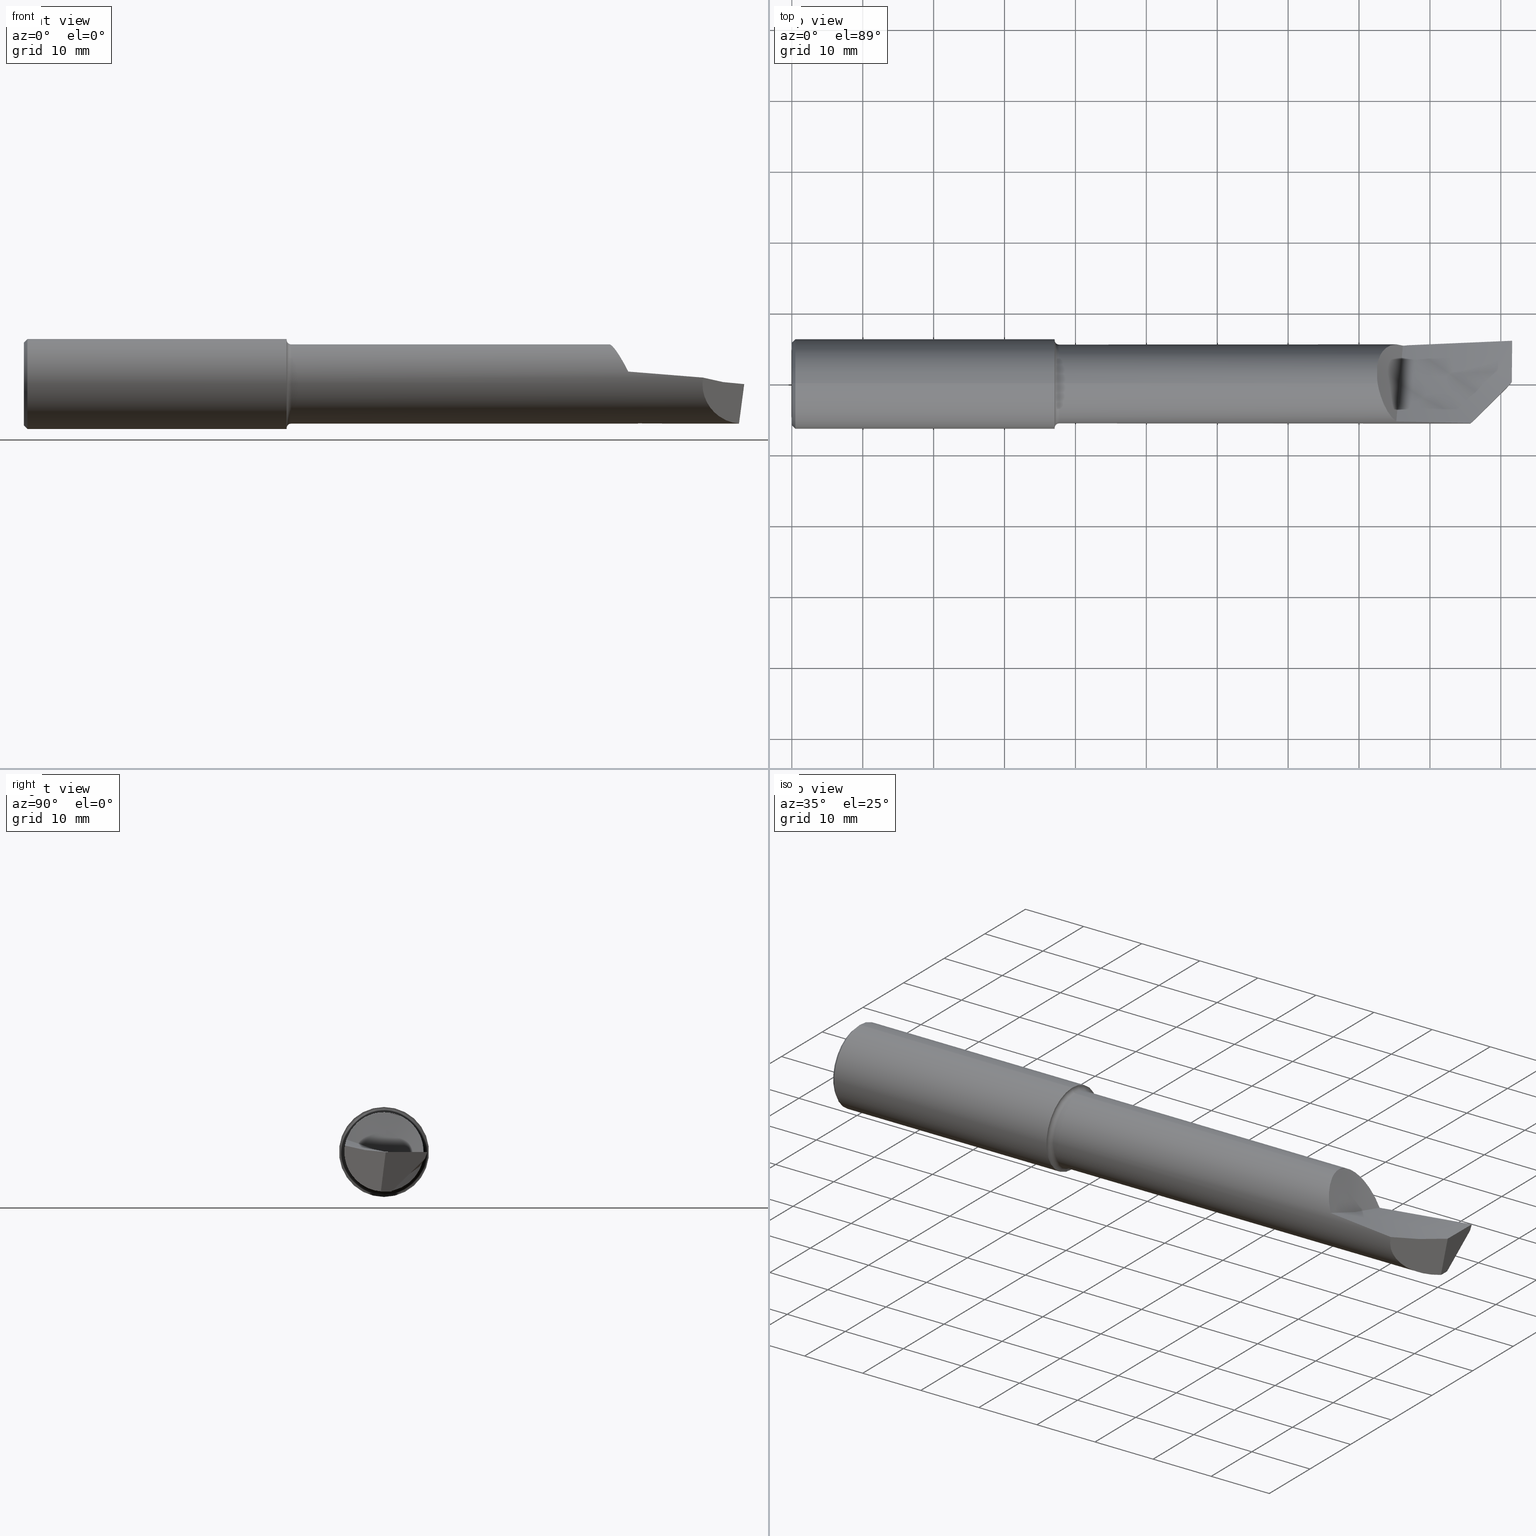
[diagram: canonical four-view strip — front | top / right | iso, engineering-drawing reading convention]
A machine part, canonical four-view strip (front | top / right | iso — engineering-drawing reading convention). The complete STEP part file that produces these views, byte-faithful:
ISO-10303-21;
HEADER;
FILE_DESCRIPTION (( 'STEP AP203' ),
    '1' );
FILE_NAME ('216417-HB4802500.STEP',
    '2024-08-09T22:35:13',
    ( '' ),
    ( '' ),
    'SwSTEP 2.0',
    'SolidWorks 2024',
    '' );
FILE_SCHEMA (( 'CONFIG_CONTROL_DESIGN' ));
ENDSEC;

DATA;
#1 = CARTESIAN_POINT ( 'NONE',  ( 3.290623232216533633, -0.1224700767580416683, 0.1827614645761383438 ) ) ;
#2 = ORIENTED_EDGE ( 'NONE', *, *, #268, .T. ) ;
#3 = CARTESIAN_POINT ( 'NONE',  ( 3.315494800936122477, 0.2096186112504903054, 0.06783711927765510852 ) ) ;
#4 = CIRCLE ( 'NONE', #401, 0.2498499999999999888 ) ;
#5 = CC_DESIGN_APPROVAL ( #179, ( #6 ) ) ;
#6 = PRODUCT_DEFINITION ( 'UNKNOWN', '', #727, #410 ) ;
#7 = ADVANCED_FACE ( 'NONE', ( #402 ), #294, .T. ) ;
#8 = CARTESIAN_POINT ( 'NONE',  ( 3.291057892820141273, -0.1233858508182218705, 0.1821426667538934285 ) ) ;
#9 = EDGE_LOOP ( 'NONE', ( #213, #158, #111, #241, #517 ) ) ;
#10 = CARTESIAN_POINT ( 'NONE',  ( 3.264876125876234880, 0.1518534575458591884, 0.1592507360764036650 ) ) ;
#11 = CARTESIAN_POINT ( 'NONE',  ( 3.291167129969536198, -0.1236153981034043697, 0.1819869571867534508 ) ) ;
#12 = ORIENTED_EDGE ( 'NONE', *, *, #91, .F. ) ;
#13 = CARTESIAN_POINT ( 'NONE',  ( 3.345672065019172248, 0.2190582683874621184, 0.02033850287372309176 ) ) ;
#14 = B_SPLINE_SURFACE_WITH_KNOTS ( 'NONE', 1, 3, ( 
 ( #279, #692, #511, #219 ),
 ( #54, #626, #287, #689 ) ),
 .UNSPECIFIED., .F., .F., .F.,
 ( 2, 2 ),
 ( 4, 4 ),
 ( 0.000000000000000000, 1.000000000000000000 ),
 ( 0.000000000000000000, 1.000000000000000000 ),
 .UNSPECIFIED. ) ;
#15 = CARTESIAN_POINT ( 'NONE',  ( 3.261697773686587976, -0.04351199093200980306, 0.2169691419821611622 ) ) ;
#16 = ORIENTED_EDGE ( 'NONE', *, *, #571, .T. ) ;
#17 = CARTESIAN_POINT ( 'NONE',  ( 3.263299120774841189, 0.1481083136068592210, 0.1627128149071752072 ) ) ;
#18 = CARTESIAN_POINT ( 'NONE',  ( 3.996665286806010631, 0.2315810568624992460, -0.02654190685166167574 ) ) ;
#19 = AXIS2_PLACEMENT_3D ( 'NONE', #655, #493, #432 ) ;
#20 = CARTESIAN_POINT ( 'NONE',  ( 3.253048836201133387, -1.183062825808249093E-06, 0.2200124226379089887 ) ) ;
#21 = AXIS2_PLACEMENT_3D ( 'NONE', #501, #151, #140 ) ;
#22 = DIRECTION ( 'NONE',  ( 0.7071067811865459074, 0.000000000000000000, -0.7071067811865491270 ) ) ;
#23 = CARTESIAN_POINT ( 'NONE',  ( 3.997776599503137795, 0.2344790317911102373, -0.01769730055367019564 ) ) ;
#24 = CARTESIAN_POINT ( 'NONE',  ( 3.252747084439405967, 0.001941860339960735024, 0.2199919648580568599 ) ) ;
#25 = ORIENTED_EDGE ( 'NONE', *, *, #663, .F. ) ;
#26 = CARTESIAN_POINT ( 'NONE',  ( 3.471819322562522903, -0.01495104440659135100, -0.2196163581689157818 ) ) ;
#27 = FACE_OUTER_BOUND ( 'NONE', #107, .T. ) ;
#28 = EDGE_LOOP ( 'NONE', ( #652, #117, #161, #103 ) ) ;
#29 = APPROVAL_DATE_TIME ( #723, #351 ) ;
#30 = DIRECTION ( 'NONE',  ( 0.000000000000000000, -0.5117430001143385976, -0.8591385812742762251 ) ) ;
#31 = CC_DESIGN_PERSON_AND_ORGANIZATION_ASSIGNMENT ( #205, #616, ( #727 ) ) ;
#32 = ADVANCED_FACE ( 'NONE', ( #89, #364 ), #433, .T. ) ;
#33 = DIRECTION ( 'NONE',  ( 0.000000000000000000, -0.2212080927902476124, -0.9752266299092232638 ) ) ;
#34 = TOROIDAL_SURFACE ( 'NONE', #519, 0.2449999999999999956, 0.02499999999999993894 ) ;
#35 = CC_DESIGN_APPROVAL ( #127, ( #375 ) ) ;
#36 = CARTESIAN_POINT ( 'NONE',  ( 3.605184837390442709, 0.2091104526377268180, -0.06742930688153160601 ) ) ;
#37 = DATE_AND_TIME ( #323, #165 ) ;
#38 = CARTESIAN_POINT ( 'NONE',  ( 3.301763750540527287, -0.1449087477148408853, 0.1665523849273817802 ) ) ;
#39 =( NAMED_UNIT ( * ) PLANE_ANGLE_UNIT ( ) SI_UNIT ( $, .RADIAN. ) );
#40 = EDGE_CURVE ( 'NONE', #137, #534, #258, .T. ) ;
#41 = CARTESIAN_POINT ( 'NONE',  ( 3.410000000000000142, 0.1970817183423179408, -0.08059262188691969364 ) ) ;
#42 = ORIENTED_EDGE ( 'NONE', *, *, #204, .F. ) ;
#43 = AXIS2_PLACEMENT_3D ( 'NONE', #520, #630, #753 ) ;
#44 = CARTESIAN_POINT ( 'NONE',  ( 3.595439364797041293, 5.335640612625514099E-18, -0.2200000000000000566 ) ) ;
#45 = CC_DESIGN_PERSON_AND_ORGANIZATION_ASSIGNMENT ( #550, #441, ( #6 ) ) ;
#46 = ADVANCED_FACE ( 'NONE', ( #560 ), #600, .T. ) ;
#47 = DIRECTION ( 'NONE',  ( -1.000000000000000000, -0.000000000000000000, -0.000000000000000000 ) ) ;
#48 = EDGE_LOOP ( 'NONE', ( #183, #464, #52 ) ) ;
#49 = CARTESIAN_POINT ( 'NONE',  ( 3.392944745247168825, 0.2140968924730455025, -0.05062134562993374914 ) ) ;
#50 = B_SPLINE_CURVE_WITH_KNOTS ( 'NONE', 3,
 ( #544, #26, #360, #88 ),
 .UNSPECIFIED., .F., .F.,
 ( 4, 4 ),
 ( 0.000000000000000000, 0.004744245821462765231 ),
 .UNSPECIFIED. ) ;
#51 = CARTESIAN_POINT ( 'NONE',  ( 3.251069953674378343, 0.01350924812412978779, 0.2196435465291612654 ) ) ;
#52 = ORIENTED_EDGE ( 'NONE', *, *, #695, .F. ) ;
#53 = CARTESIAN_POINT ( 'NONE',  ( 3.960702989773093652, -0.02764916303553413557, -0.3009961683226823337 ) ) ;
#54 = CARTESIAN_POINT ( 'NONE',  ( 4.000000000000000000, 0.2288778106318485051, -0.03500000000000001027 ) ) ;
#55 = ADVANCED_FACE ( 'NONE', ( #425 ), #316, .F. ) ;
#56 = EDGE_CURVE ( 'NONE', #745, #512, #674, .T. ) ;
#57 = ORIENTED_EDGE ( 'NONE', *, *, #233, .T. ) ;
#58 = CARTESIAN_POINT ( 'NONE',  ( 3.410000000000000142, -0.08390097628365034144, -0.2576738753293116302 ) ) ;
#59 =( BOUNDED_CURVE ( )  B_SPLINE_CURVE ( 3, ( #633, #706, #234, #637 ),
 .UNSPECIFIED., .F., .T. ) 
 B_SPLINE_CURVE_WITH_KNOTS ( ( 4, 4 ),
 ( 6.120117067556848589, 7.774217519258906250 ),
 .UNSPECIFIED. ) 
 CURVE ( )  GEOMETRIC_REPRESENTATION_ITEM ( )  RATIONAL_B_SPLINE_CURVE ( ( 1.000000000000000000, 0.7846997011302692115, 0.7846997011302692115, 1.000000000000000000 ) ) 
 REPRESENTATION_ITEM ( '' )  );
#60 = CIRCLE ( 'NONE', #311, 0.2449999999999999956 ) ;
#61 = CARTESIAN_POINT ( 'NONE',  ( 3.250000000000000000, 0.02296396303119611904, 0.2187982093206017886 ) ) ;
#62 = VERTEX_POINT ( 'NONE', #721 ) ;
#63 = CARTESIAN_POINT ( 'NONE',  ( 0.000000000000000000, 0.000000000000000000, 0.000000000000000000 ) ) ;
#64 = DIRECTION ( 'NONE',  ( 0.7071067811865459074, 8.659560562354952580E-17, 0.7071067811865491270 ) ) ;
#65 = ORIENTED_EDGE ( 'NONE', *, *, #328, .T. ) ;
#66 = MANIFOLD_SOLID_BREP ( 'Front Angle', #264 ) ;
#67 = CARTESIAN_POINT ( 'NONE',  ( 3.410000000000000142, 0.1970817183423179408, -0.08059262188691969364 ) ) ;
#68 = ADVANCED_FACE ( 'NONE', ( #318 ), #638, .T. ) ;
#69 = ORIENTED_EDGE ( 'NONE', *, *, #80, .F. ) ;
#70 =( LENGTH_UNIT ( ) NAMED_UNIT ( * ) SI_UNIT ( $, .METRE. ) );
#71 = CARTESIAN_POINT ( 'NONE',  ( 3.249999999999998224, -0.1532211501734796200, 0.2786091727372814186 ) ) ;
#72 = ORIENTED_EDGE ( 'NONE', *, *, #540, .F. ) ;
#73 = CARTESIAN_POINT ( 'NONE',  ( 3.361872680313165329, 0.2211791025387656318, -0.004520542396873948425 ) ) ;
#74 = CARTESIAN_POINT ( 'NONE',  ( 0.02000000000000000042, 3.059780027669661931E-17, -0.2498499999999999888 ) ) ;
#75 = EDGE_LOOP ( 'NONE', ( #12, #676, #2, #224 ) ) ;
#76 = CARTESIAN_POINT ( 'NONE',  ( 3.273164231607915919, 0.1684140353893813780, 0.1420550892562192080 ) ) ;
#77 = B_SPLINE_SURFACE_WITH_KNOTS ( 'NONE', 1, 3, ( 
 ( #71, #535, #641, #528 ),
 ( #125, #466, #242, #349 ) ),
 .UNSPECIFIED., .F., .F., .F.,
 ( 2, 2 ),
 ( 4, 4 ),
 ( 0.000000000000000000, 1.000000000000000000 ),
 ( 0.03106933249314343046, 0.04273401883258824696 ),
 .UNSPECIFIED. ) ;
#78 = CARTESIAN_POINT ( 'NONE',  ( 3.679487179487179738, -0.1433107432254709379, 0.01290318863713321371 ) ) ;
#79 = DIRECTION ( 'NONE',  ( 0.000000000000000000, 0.000000000000000000, -1.000000000000000000 ) ) ;
#80 = EDGE_CURVE ( 'NONE', #737, #168, #397, .T. ) ;
#81 = CARTESIAN_POINT ( 'NONE',  ( 3.971247793545428006, 0.04102909952493548340, -0.2200000000000000566 ) ) ;
#82 = CARTESIAN_POINT ( 'NONE',  ( 3.038461538461540101, 0.4058074895221152611, -0.1396724983455376601 ) ) ;
#83 = CIRCLE ( 'NONE', #142, 0.2298499999999999155 ) ;
#84 = CARTESIAN_POINT ( 'NONE',  ( 3.995554176883930886, 0.2286766137360566886, -0.03538440047009814432 ) ) ;
#85 = AXIS2_PLACEMENT_3D ( 'NONE', #383, #450, #460 ) ;
#86 = VERTEX_POINT ( 'NONE', #657 ) ;
#87 = PERSON_AND_ORGANIZATION_ROLE ( 'design_owner' ) ;
#88 = CARTESIAN_POINT ( 'NONE',  ( 3.595439364797041293, 5.335640612625514099E-18, -0.2200000000000000566 ) ) ;
#89 = FACE_BOUND ( 'NONE', #712, .T. ) ;
#90 = APPROVAL_ROLE ( '' ) ;
#91 = EDGE_CURVE ( 'NONE', #86, #331, #499, .T. ) ;
#92 = ADVANCED_BREP_SHAPE_REPRESENTATION ( '216417-HB4802500', ( #66, #320 ), #106 ) ;
#93 = CARTESIAN_POINT ( 'NONE',  ( 3.250000000000000000, 0.02296396303119611904, 0.2187982093206017886 ) ) ;
#94 = CARTESIAN_POINT ( 'NONE',  ( 4.000000000000000000, 0.2402499999999999636, 0.000000000000000000 ) ) ;
#95 = FACE_OUTER_BOUND ( 'NONE', #553, .T. ) ;
#96 = AXIS2_PLACEMENT_3D ( 'NONE', #551, #367, #678 ) ;
#97 = LOCAL_TIME ( 15, 35, 13.00000000000000000, #677 ) ;
#98 = APPROVAL_ROLE ( '' ) ;
#99 = FACE_OUTER_BOUND ( 'NONE', #504, .T. ) ;
#100 = ORIENTED_EDGE ( 'NONE', *, *, #40, .F. ) ;
#101 = DIRECTION ( 'NONE',  ( 0.000000000000000000, 0.000000000000000000, 1.000000000000000000 ) ) ;
#102 = CARTESIAN_POINT ( 'NONE',  ( 3.343568907379044219, -0.2004185357093107300, 0.09466616758537438336 ) ) ;
#103 = ORIENTED_EDGE ( 'NONE', *, *, #422, .F. ) ;
#104 = CARTESIAN_POINT ( 'NONE',  ( 3.418486830548872923, 0.2160475044874685668, -0.04882782362294704054 ) ) ;
#105 = CARTESIAN_POINT ( 'NONE',  ( 3.250000000000000000, 0.02296396303119611904, 0.2187982093206017886 ) ) ;
#106 =( GEOMETRIC_REPRESENTATION_CONTEXT ( 3 ) GLOBAL_UNCERTAINTY_ASSIGNED_CONTEXT ( ( #744 ) ) GLOBAL_UNIT_ASSIGNED_CONTEXT ( ( #502, #39, #735 ) ) REPRESENTATION_CONTEXT ( 'NONE', 'WORKASPACE' ) );
#107 = EDGE_LOOP ( 'NONE', ( #697, #461, #590, #288 ) ) ;
#108 = APPROVAL_PERSON_ORGANIZATION ( #256, #351, #492 ) ;
#109 = LINE ( 'NONE', #345, #453 ) ;
#110 = CARTESIAN_POINT ( 'NONE',  ( 3.971247793545428006, 0.04102909952493548340, -0.2200000000000000566 ) ) ;
#111 = ORIENTED_EDGE ( 'NONE', *, *, #719, .F. ) ;
#112 = CARTESIAN_POINT ( 'NONE',  ( 3.410000000000000142, 0.2135228625924190382, -0.05299044395307094674 ) ) ;
#113 = ADVANCED_FACE ( 'NONE', ( #266 ), #729, .T. ) ;
#114 = EDGE_LOOP ( 'NONE', ( #247, #742, #338, #217, #539 ) ) ;
#115 = CARTESIAN_POINT ( 'NONE',  ( 3.356559098504054095, -0.2088777642239234011, 0.06906576061805759503 ) ) ;
#116 = CARTESIAN_POINT ( 'NONE',  ( 3.970838677816552753, -0.005850919593664221513, -0.2200000000000000011 ) ) ;
#117 = ORIENTED_EDGE ( 'NONE', *, *, #244, .T. ) ;
#118 = CARTESIAN_POINT ( 'NONE',  ( 3.606666776175601274, 0.2092017806738953045, -0.06732936455335815362 ) ) ;
#119 = VECTOR ( 'NONE', #411, 39.37007874015748854 ) ;
#120 = AXIS2_PLACEMENT_3D ( 'NONE', #668, #368, #79 ) ;
#121 = DIRECTION ( 'NONE',  ( -1.000000000000000000, -0.000000000000000000, -0.000000000000000000 ) ) ;
#122 = ORIENTED_EDGE ( 'NONE', *, *, #458, .F. ) ;
#123 = ADVANCED_FACE ( 'NONE', ( #27 ), #484, .T. ) ;
#124 = DIRECTION ( 'NONE',  ( 0.000000000000000000, 0.000000000000000000, -1.000000000000000000 ) ) ;
#125 = CARTESIAN_POINT ( 'NONE',  ( 3.355206627485803672, -0.2299856027569572026, 0.07713840752615958030 ) ) ;
#126 = ORIENTED_EDGE ( 'NONE', *, *, #156, .F. ) ;
#127 = APPROVAL ( #667, 'UNSPECIFIED' ) ;
#128 = CARTESIAN_POINT ( 'NONE',  ( 3.303309749101930759, 0.2016291004824107558, 0.08800993919114155628 ) ) ;
#129 = VERTEX_POINT ( 'NONE', #733 ) ;
#130 = CARTESIAN_POINT ( 'NONE',  ( 3.268791352084500001, 0.1599650663951526219, 0.1510341587815111075 ) ) ;
#131 = AXIS2_PLACEMENT_3D ( 'NONE', #686, #232, #465 ) ;
#132 = ORIENTED_EDGE ( 'NONE', *, *, #500, .T. ) ;
#133 = CARTESIAN_POINT ( 'NONE',  ( 3.286822331381985762, 0.1866629217514899075, 0.1166063220459149091 ) ) ;
#134 = EDGE_CURVE ( 'NONE', #451, #191, #60, .T. ) ;
#135 = ADVANCED_FACE ( 'NONE', ( #95 ), #545, .F. ) ;
#136 = CARTESIAN_POINT ( 'NONE',  ( 4.000000000000000000, 0.4258375057284731757, 0.01320825401576949422 ) ) ;
#137 = VERTEX_POINT ( 'NONE', #306 ) ;
#138 = CARTESIAN_POINT ( 'NONE',  ( 3.278168894559946089, 0.1761411732434135513, 0.1324183139899752226 ) ) ;
#139 = CARTESIAN_POINT ( 'NONE',  ( 3.410000000000000142, 0.2135228625924190382, -0.05299044395307094674 ) ) ;
#140 = DIRECTION ( 'NONE',  ( 0.000000000000000000, 0.000000000000000000, 1.000000000000000000 ) ) ;
#141 = CARTESIAN_POINT ( 'NONE',  ( 3.258515655996601978, 0.1351780063360116801, 0.1737028663086872260 ) ) ;
#142 = AXIS2_PLACEMENT_3D ( 'NONE', #526, #281, #462 ) ;
#143 = CARTESIAN_POINT ( 'NONE',  ( 3.998938641188131360, 0.1633380998407393259, -0.003177467661418243317 ) ) ;
#144 = VECTOR ( 'NONE', #418, 39.37007874015748143 ) ;
#145 = DIRECTION ( 'NONE',  ( 0.000000000000000000, 0.000000000000000000, -1.000000000000000000 ) ) ;
#146 = EDGE_CURVE ( 'NONE', #384, #380, #611, .T. ) ;
#147 = DATE_TIME_ROLE ( 'classification_date' ) ;
#148 = CARTESIAN_POINT ( 'NONE',  ( 3.998256711176775724, 0.08645143747529215883, -0.003266647090703820016 ) ) ;
#149 = CARTESIAN_POINT ( 'NONE',  ( 3.410000000000000142, 0.1970817183423179408, -0.08059262188691969364 ) ) ;
#150 = COORDINATED_UNIVERSAL_TIME_OFFSET ( 8, 0, .BEHIND. ) ;
#151 = DIRECTION ( 'NONE',  ( -1.000000000000000000, -0.000000000000000000, -0.000000000000000000 ) ) ;
#152 = CARTESIAN_POINT ( 'NONE',  ( 3.754857864376268672, -0.2334942884323591705, -0.2500000000000000555 ) ) ;
#153 = CONICAL_SURFACE ( 'NONE', #43, 0.2498499999999999888, 0.7853981633974506105 ) ;
#154 = COORDINATED_UNIVERSAL_TIME_OFFSET ( 8, 0, .BEHIND. ) ;
#155 = VECTOR ( 'NONE', #208, 39.37007874015748143 ) ;
#156 = EDGE_CURVE ( 'NONE', #734, #737, #438, .T. ) ;
#157 = CARTESIAN_POINT ( 'NONE',  ( 3.771270714435558613, -0.2170814383730695907, 0.03571623039850645859 ) ) ;
#158 = ORIENTED_EDGE ( 'NONE', *, *, #562, .F. ) ;
#159 = FACE_OUTER_BOUND ( 'NONE', #588, .T. ) ;
#160 = CARTESIAN_POINT ( 'NONE',  ( 3.410000000000000142, 0.000000000000000000, 0.000000000000000000 ) ) ;
#161 = ORIENTED_EDGE ( 'NONE', *, *, #278, .T. ) ;
#162 = DIRECTION ( 'NONE',  ( 0.000000000000000000, 7.105427357601001859E-15, 1.000000000000000000 ) ) ;
#163 = CIRCLE ( 'NONE', #131, 0.2498499999999999888 ) ;
#164 = EDGE_LOOP ( 'NONE', ( #472, #132 ) ) ;
#165 = LOCAL_TIME ( 15, 35, 13.00000000000000000, #563 ) ;
#166 = CARTESIAN_POINT ( 'NONE',  ( 3.368992473848769098, -0.07181561011661133365, 0.01702505518877553414 ) ) ;
#167 = CARTESIAN_POINT ( 'NONE',  ( 1.484525038226269800, 0.000000000000000000, 0.000000000000000000 ) ) ;
#168 = VERTEX_POINT ( 'NONE', #41 ) ;
#169 = LINE ( 'NONE', #53, #467 ) ;
#170 = CARTESIAN_POINT ( 'NONE',  ( 3.286194494552776568, -0.1128910208792931746, 0.1889741111404043550 ) ) ;
#171 = ORIENTED_EDGE ( 'NONE', *, *, #732, .F. ) ;
#172 = CYLINDRICAL_SURFACE ( 'NONE', #273, 0.2200000000000000566 ) ;
#173 = EDGE_CURVE ( 'NONE', #525, #300, #685, .T. ) ;
#174 = CARTESIAN_POINT ( 'NONE',  ( 3.997941307501973185, 0.009589154693344590849, -0.0003725554249012129554 ) ) ;
#175 = APPLICATION_CONTEXT ( 'configuration controlled 3d designs of mechanical parts and assemblies' ) ;
#176 = EDGE_LOOP ( 'NONE', ( #100, #693, #243, #754, #704, #429, #57, #393, #722, #748 ) ) ;
#177 = PLANE ( 'NONE',  #497 ) ;
#178 = CARTESIAN_POINT ( 'NONE',  ( 3.253048836201133387, -1.183062825808249093E-06, 0.2200124226379089887 ) ) ;
#179 = APPROVAL ( #606, 'UNSPECIFIED' ) ;
#180 = ORIENTED_EDGE ( 'NONE', *, *, #333, .T. ) ;
#181 = DIRECTION ( 'NONE',  ( 0.000000000000000000, 0.000000000000000000, 1.000000000000000000 ) ) ;
#182 = CARTESIAN_POINT ( 'NONE',  ( 3.970847024906385414, -0.004894437837194355254, -0.2200000000000000566 ) ) ;
#183 = ORIENTED_EDGE ( 'NONE', *, *, #540, .T. ) ;
#184 = CARTESIAN_POINT ( 'NONE',  ( 3.302742053925485699, 0.2012100239217639863, 0.08896533452430112343 ) ) ;
#185 = CARTESIAN_POINT ( 'NONE',  ( 1.459525038226269666, 0.000000000000000000, 0.2498499999999999888 ) ) ;
#186 = ORIENTED_EDGE ( 'NONE', *, *, #395, .F. ) ;
#187 = CARTESIAN_POINT ( 'NONE',  ( 3.720539435096679171, 0.01518366230952238917, -0.2200000000000000566 ) ) ;
#188 = EDGE_CURVE ( 'NONE', #191, #451, #404, .T. ) ;
#189 = CIRCLE ( 'NONE', #236, 0.2498499999999999888 ) ;
#190 = CARTESIAN_POINT ( 'NONE',  ( 2.717948717948720283, -0.1284787043503996806, 0.06242489022452848979 ) ) ;
#191 = VERTEX_POINT ( 'NONE', #337 ) ;
#192 = CARTESIAN_POINT ( 'NONE',  ( 3.326303742156071053, 0.2141922380105715784, 0.05056821540890456962 ) ) ;
#193 = DIRECTION ( 'NONE',  ( -1.000000000000000000, -0.000000000000000000, -0.000000000000000000 ) ) ;
#194 = CARTESIAN_POINT ( 'NONE',  ( 3.250000000000000000, 0.9517059271875957238, 2.845044789305785304 ) ) ;
#195 = ORIENTED_EDGE ( 'NONE', *, *, #695, .T. ) ;
#196 = CARTESIAN_POINT ( 'NONE',  ( 3.268323433205457373, 0.1590487263599176526, 0.1519989609637906469 ) ) ;
#197 = CARTESIAN_POINT ( 'NONE',  ( 4.000000000000000000, 0.2402499999999999636, 0.000000000000000000 ) ) ;
#198 = EDGE_CURVE ( 'NONE', #384, #129, #747, .T. ) ;
#199 = DIRECTION ( 'NONE',  ( 0.000000000000000000, 0.000000000000000000, -1.000000000000000000 ) ) ;
#200 = PERSON_AND_ORGANIZATION_ROLE ( 'creator' ) ;
#201 = AXIS2_PLACEMENT_3D ( 'NONE', #202, #193, #660 ) ;
#202 = CARTESIAN_POINT ( 'NONE',  ( 0.000000000000000000, 0.000000000000000000, 0.000000000000000000 ) ) ;
#203 = DIRECTION ( 'NONE',  ( 0.000000000000000000, 0.000000000000000000, 1.000000000000000000 ) ) ;
#204 = EDGE_CURVE ( 'NONE', #634, #380, #625, .T. ) ;
#205 = PERSON_AND_ORGANIZATION ( #478, #711 ) ;
#206 = CARTESIAN_POINT ( 'NONE',  ( 3.410000000000000142, 0.2558415763869938964, -0.006761738212205330341 ) ) ;
#207 = MECHANICAL_CONTEXT ( 'NONE', #175, 'mechanical' ) ;
#208 = DIRECTION ( 'NONE',  ( -1.000000000000000000, -0.000000000000000000, -0.000000000000000000 ) ) ;
#209 = APPLICATION_PROTOCOL_DEFINITION ( 'international standard', 'config_control_design', 1994, #175 ) ;
#210 = B_SPLINE_CURVE_WITH_KNOTS ( 'NONE', 3,
 ( #49, #691, #166, #115 ),
 .UNSPECIFIED., .F., .F.,
 ( 4, 4 ),
 ( 0.000000000000000000, 1.000000000000000000 ),
 .UNSPECIFIED. ) ;
#211 = DIRECTION ( 'NONE',  ( -1.000000000000000000, -0.000000000000000000, -0.000000000000000000 ) ) ;
#212 = AXIS2_PLACEMENT_3D ( 'NONE', #225, #229, #523 ) ;
#213 = ORIENTED_EDGE ( 'NONE', *, *, #308, .F. ) ;
#214 = PERSON_AND_ORGANIZATION ( #478, #711 ) ;
#215 = CARTESIAN_POINT ( 'NONE',  ( 3.250000000000000000, 0.04699247397412712607, 0.2120036020236629182 ) ) ;
#216 = DIRECTION ( 'NONE',  ( 1.000000000000000000, -0.000000000000000000, -0.000000000000000000 ) ) ;
#217 = ORIENTED_EDGE ( 'NONE', *, *, #506, .F. ) ;
#218 = DIRECTION ( 'NONE',  ( 0.000000000000000000, 0.000000000000000000, 1.000000000000000000 ) ) ;
#219 = CARTESIAN_POINT ( 'NONE',  ( 3.410000000000000142, 0.2159144635021685021, -0.04897531016107510571 ) ) ;
#220 = ORIENTED_EDGE ( 'NONE', *, *, #198, .F. ) ;
#221 = CARTESIAN_POINT ( 'NONE',  ( 3.250000000000000000, 0.09504805913229202874, 0.1984083326253822666 ) ) ;
#222 = CARTESIAN_POINT ( 'NONE',  ( 3.564429700643781285, -0.2143015012764733218, 0.05261254719292926540 ) ) ;
#223 = CIRCLE ( 'NONE', #613, 0.2200000000000000566 ) ;
#224 = ORIENTED_EDGE ( 'NONE', *, *, #669, .F. ) ;
#225 = CARTESIAN_POINT ( 'NONE',  ( 0.000000000000000000, 0.000000000000000000, 0.000000000000000000 ) ) ;
#226 = DIMENSIONAL_EXPONENTS ( 1.000000000000000000, 0.000000000000000000, 0.000000000000000000, 0.000000000000000000, 0.000000000000000000, 0.000000000000000000, 0.000000000000000000 ) ;
#227 = CARTESIAN_POINT ( 'NONE',  ( 0.000000000000000000, 2.937315347754926265E-17, 0.2298499999999999155 ) ) ;
#228 = VERTEX_POINT ( 'NONE', #283 ) ;
#229 = DIRECTION ( 'NONE',  ( -1.000000000000000000, -0.000000000000000000, -0.000000000000000000 ) ) ;
#230 = CARTESIAN_POINT ( 'NONE',  ( 0.02000000000000000042, 3.059780027669661931E-17, 0.2498499999999999888 ) ) ;
#231 = ORIENTED_EDGE ( 'NONE', *, *, #328, .F. ) ;
#232 = DIRECTION ( 'NONE',  ( -1.000000000000000000, -0.000000000000000000, -0.000000000000000000 ) ) ;
#233 = EDGE_CURVE ( 'NONE', #565, #594, #654, .T. ) ;
#234 = CARTESIAN_POINT ( 'NONE',  ( 3.833707386268460748, -0.1546447665401670113, -0.2083403850635354160 ) ) ;
#235 = ORIENTED_EDGE ( 'NONE', *, *, #91, .T. ) ;
#236 = AXIS2_PLACEMENT_3D ( 'NONE', #698, #743, #218 ) ;
#237 = CARTESIAN_POINT ( 'NONE',  ( 1.484525038226269800, 0.000000000000000000, 0.000000000000000000 ) ) ;
#238 = APPROVAL_PERSON_ORGANIZATION ( #557, #179, #98 ) ;
#239 = CARTESIAN_POINT ( 'NONE',  ( 3.410000000000000142, 0.000000000000000000, -0.2200000000000000566 ) ) ;
#240 = B_SPLINE_CURVE_WITH_KNOTS ( 'NONE', 3,
 ( #93, #215, #419, #382 ),
 .UNSPECIFIED., .F., .F.,
 ( 4, 4 ),
 ( 0.000000000000000000, 1.000000000000000000 ),
 .UNSPECIFIED. ) ;
#241 = ORIENTED_EDGE ( 'NONE', *, *, #500, .F. ) ;
#242 = CARTESIAN_POINT ( 'NONE',  ( 3.382444373406538585, 0.08525274857250945970, -0.02813121554069045877 ) ) ;
#243 = ORIENTED_EDGE ( 'NONE', *, *, #413, .T. ) ;
#244 = EDGE_CURVE ( 'NONE', #191, #534, #389, .T. ) ;
#245 = CARTESIAN_POINT ( 'NONE',  ( 0.02000000000000000042, 0.000000000000000000, -0.2498499999999999888 ) ) ;
#246 = CARTESIAN_POINT ( 'NONE',  ( 3.846075425691744876, -0.1422767271168803027, 0.01425986872581132096 ) ) ;
#247 = ORIENTED_EDGE ( 'NONE', *, *, #423, .F. ) ;
#248 = CARTESIAN_POINT ( 'NONE',  ( 3.344850277066562683, 0.2189397232252879577, 0.02160200614134060587 ) ) ;
#249 = CIRCLE ( 'NONE', #19, 0.02499999999999993894 ) ;
#250 = CARTESIAN_POINT ( 'NONE',  ( 3.997220900003098709, 0.2330314313508999591, -0.02212005370833387830 ) ) ;
#251 = CARTESIAN_POINT ( 'NONE',  ( 3.252989359298701366, 0.0004094560187712749984, 0.2200000003197546683 ) ) ;
#252 = DIRECTION ( 'NONE',  ( 0.000000000000000000, 0.000000000000000000, 1.000000000000000000 ) ) ;
#253 = EDGE_CURVE ( 'NONE', #522, #137, #673, .T. ) ;
#254 = CARTESIAN_POINT ( 'NONE',  ( 3.038461538461539657, -0.1360584583238938217, 0.04682475114047649628 ) ) ;
#255 = DIRECTION ( 'NONE',  ( -0.7071067811865472397, 0.7071067811865477948, 0.000000000000000000 ) ) ;
#256 = PERSON_AND_ORGANIZATION ( #478, #711 ) ;
#257 = CARTESIAN_POINT ( 'NONE',  ( 3.995924508398109420, 0.2296459939770620906, -0.03243730289249242144 ) ) ;
#258 = LINE ( 'NONE', #495, #155 ) ;
#259 = ORIENTED_EDGE ( 'NONE', *, *, #623, .F. ) ;
#260 = PERSON_AND_ORGANIZATION ( #478, #711 ) ;
#261 = DIRECTION ( 'NONE',  ( 1.000000000000000000, 0.000000000000000000, 0.000000000000000000 ) ) ;
#262 = LOCAL_TIME ( 15, 35, 13.00000000000000000, #436 ) ;
#263 = DIRECTION ( 'NONE',  ( 0.000000000000000000, 0.2789911060392297193, 0.9602936856769428431 ) ) ;
#264 = CLOSED_SHELL ( 'NONE', ( #342, #123, #457, #656, #68, #407, #7, #113, #527, #282, #32, #585, #55, #321, #592, #277, #46, #352, #135, #446 ) ) ;
#265 = CARTESIAN_POINT ( 'NONE',  ( 0.000000000000000000, 0.000000000000000000, 0.000000000000000000 ) ) ;
#266 = FACE_OUTER_BOUND ( 'NONE', #75, .T. ) ;
#267 = DATE_AND_TIME ( #271, #262 ) ;
#268 = EDGE_CURVE ( 'NONE', #361, #580, #620, .T. ) ;
#269 = CARTESIAN_POINT ( 'NONE',  ( 3.987387192537214631, 0.1666979988148709069, -0.09749167947812314994 ) ) ;
#270 = ORIENTED_EDGE ( 'NONE', *, *, #56, .T. ) ;
#271 = CALENDAR_DATE ( 2024, 9, 8 ) ;
#272 = CARTESIAN_POINT ( 'NONE',  ( 3.401469481609321388, 0.2142601318164513158, -0.04993094446185703666 ) ) ;
#273 = AXIS2_PLACEMENT_3D ( 'NONE', #452, #581, #759 ) ;
#274 = ORIENTED_EDGE ( 'NONE', *, *, #623, .T. ) ;
#275 = AXIS2_PLACEMENT_3D ( 'NONE', #372, #322, #203 ) ;
#276 = CARTESIAN_POINT ( 'NONE',  ( 3.412811562919336072, 0.2143837749633566714, -0.05157965173914622753 ) ) ;
#277 = ADVANCED_FACE ( 'NONE', ( #575 ), #14, .T. ) ;
#278 = EDGE_CURVE ( 'NONE', #534, #129, #567, .T. ) ;
#279 = CARTESIAN_POINT ( 'NONE',  ( 4.000000000000000000, 0.2402499999999999636, 6.829619984160658046E-17 ) ) ;
#280 = ORIENTED_EDGE ( 'NONE', *, *, #471, .T. ) ;
#281 = DIRECTION ( 'NONE',  ( -1.000000000000000000, -0.000000000000000000, -0.000000000000000000 ) ) ;
#282 = ADVANCED_FACE ( 'NONE', ( #99 ), #153, .T. ) ;
#283 = CARTESIAN_POINT ( 'NONE',  ( 3.970889738018300363, 0.000000000000000000, -0.2200000000000000566 ) ) ;
#284 = EDGE_LOOP ( 'NONE', ( #569, #707, #171 ) ) ;
#285 = CARTESIAN_POINT ( 'NONE',  ( 1.484525038226269800, 0.000000000000000000, 0.000000000000000000 ) ) ;
#286 = B_SPLINE_CURVE_WITH_KNOTS ( 'NONE', 3,
 ( #577, #681, #632, #586 ),
 .UNSPECIFIED., .F., .F.,
 ( 4, 4 ),
 ( 0.000000000000000000, 0.0002197412204929081341 ),
 .UNSPECIFIED. ) ;
#287 = CARTESIAN_POINT ( 'NONE',  ( 3.606666776175607936, 0.2092017806738957209, -0.06732936455348687010 ) ) ;
#288 = ORIENTED_EDGE ( 'NONE', *, *, #670, .F. ) ;
#289 = CARTESIAN_POINT ( 'NONE',  ( 3.771270714435558613, -0.2170814383730695907, 0.03571623039850645859 ) ) ;
#290 = CARTESIAN_POINT ( 'NONE',  ( 3.291026367974280387, -0.1233195885780034168, 0.1821875986796247238 ) ) ;
#291 = VERTEX_POINT ( 'NONE', #227 ) ;
#292 = CARTESIAN_POINT ( 'NONE',  ( 3.606667235806155336, -0.05861467462063396638, -0.2653019991292714375 ) ) ;
#293 = CARTESIAN_POINT ( 'NONE',  ( 3.970889738018300363, 0.000000000000000000, -0.2200000000000000566 ) ) ;
#294 = CYLINDRICAL_SURFACE ( 'NONE', #275, 0.2200000000000000566 ) ;
#295 = CARTESIAN_POINT ( 'NONE',  ( 3.300386731116057515, 0.1994133129509642055, 0.09294706894654820861 ) ) ;
#296 = EDGE_LOOP ( 'NONE', ( #480, #536, #642, #220, #406, #42, #690, #369, #195 ) ) ;
#297 = CARTESIAN_POINT ( 'NONE',  ( 3.845852163534262846, 0.02853572066344945563, -0.2199999999999999178 ) ) ;
#298 = AXIS2_PLACEMENT_3D ( 'NONE', #330, #216, #162 ) ;
#299 = CC_DESIGN_PERSON_AND_ORGANIZATION_ASSIGNMENT ( #260, #200, ( #727 ) ) ;
#300 = VERTEX_POINT ( 'NONE', #377 ) ;
#301 = LINE ( 'NONE', #602, #144 ) ;
#302 = DIRECTION ( 'NONE',  ( 0.000000000000000000, 0.000000000000000000, 1.000000000000000000 ) ) ;
#303 = ORIENTED_EDGE ( 'NONE', *, *, #413, .F. ) ;
#304 = DIRECTION ( 'NONE',  ( -1.000000000000000000, -0.000000000000000000, -0.000000000000000000 ) ) ;
#305 = CARTESIAN_POINT ( 'NONE',  ( 3.679487179487180626, 0.4274412781259713245, -0.03849778046020245481 ) ) ;
#306 = CARTESIAN_POINT ( 'NONE',  ( 3.410000000000000142, 2.694222958124177253E-17, -0.2200000000000000011 ) ) ;
#307 = CARTESIAN_POINT ( 'NONE',  ( 3.377263106783646940, 0.2194462568404664804, -0.02799947325392295600 ) ) ;
#308 = EDGE_CURVE ( 'NONE', #594, #384, #475, .T. ) ;
#309 = AXIS2_PLACEMENT_3D ( 'NONE', #617, #503, #388 ) ;
#310 = CARTESIAN_POINT ( 'NONE',  ( 2.717948717948720283, 0.1185125768182977157, -0.08009619267214614091 ) ) ;
#311 = AXIS2_PLACEMENT_3D ( 'NONE', #312, #374, #439 ) ;
#312 = CARTESIAN_POINT ( 'NONE',  ( 1.459525038226269888, 0.000000000000000000, 0.000000000000000000 ) ) ;
#313 = APPLICATION_PROTOCOL_DEFINITION ( 'international standard', 'config_control_design', 1994, #543 ) ;
#314 = EDGE_CURVE ( 'NONE', #549, #228, #341, .T. ) ;
#315 = CARTESIAN_POINT ( 'NONE',  ( 4.000000000000000888, -0.1427725359348056000, -0.004432535825742341291 ) ) ;
#316 = PLANE ( 'NONE',  #700 ) ;
#317 = FACE_OUTER_BOUND ( 'NONE', #529, .T. ) ;
#318 = FACE_OUTER_BOUND ( 'NONE', #48, .T. ) ;
#319 = DIRECTION ( 'NONE',  ( 1.000000000000000000, 0.000000000000000000, 0.000000000000000000 ) ) ;
#320 = AXIS2_PLACEMENT_3D ( 'NONE', #265, #101, #319 ) ;
#321 = ADVANCED_FACE ( 'NONE', ( #405 ), #77, .T. ) ;
#322 = DIRECTION ( 'NONE',  ( -1.000000000000000000, -0.000000000000000000, -0.000000000000000000 ) ) ;
#323 = CALENDAR_DATE ( 2024, 9, 8 ) ;
#324 = CARTESIAN_POINT ( 'NONE',  ( 3.331611175002783920, -0.1879456397189677441, 0.1165832106559181874 ) ) ;
#325 = SECURITY_CLASSIFICATION_LEVEL ( 'unclassified' ) ;
#326 = CARTESIAN_POINT ( 'NONE',  ( 3.292376002346411923, -0.1261431576479062899, 0.1802597226350386439 ) ) ;
#327 = ORIENTED_EDGE ( 'NONE', *, *, #423, .T. ) ;
#328 = EDGE_CURVE ( 'NONE', #456, #565, #683, .T. ) ;
#329 = CARTESIAN_POINT ( 'NONE',  ( 3.418486830548872923, 0.2160475044874685668, -0.04882782362294704054 ) ) ;
#330 = CARTESIAN_POINT ( 'NONE',  ( 3.250000000000000000, 0.000000000000000000, 0.000000000000000000 ) ) ;
#331 = VERTEX_POINT ( 'NONE', #74 ) ;
#332 = DIRECTION ( 'NONE',  ( -1.000000000000000000, -0.000000000000000000, -0.000000000000000000 ) ) ;
#333 = EDGE_CURVE ( 'NONE', #565, #549, #59, .T. ) ;
#334 = DIRECTION ( 'NONE',  ( -1.000000000000000000, -0.000000000000000000, -0.000000000000000000 ) ) ;
#335 = ORIENTED_EDGE ( 'NONE', *, *, #314, .T. ) ;
#336 = CARTESIAN_POINT ( 'NONE',  ( 1.459525038226269666, 0.000000000000000000, 0.000000000000000000 ) ) ;
#337 = CARTESIAN_POINT ( 'NONE',  ( 1.459525038226269888, 3.000384657911014877E-17, -0.2449999999999999956 ) ) ;
#338 = ORIENTED_EDGE ( 'NONE', *, *, #471, .F. ) ;
#339 = CARTESIAN_POINT ( 'NONE',  ( 3.803332785482819389, -0.03231946398677612575, -0.2694059603548960014 ) ) ;
#340 = PLANE ( 'NONE',  #417 ) ;
#341 =( BOUNDED_CURVE ( )  B_SPLINE_CURVE ( 3, ( #357, #587, #116, #293 ),
 .UNSPECIFIED., .F., .F. ) 
 B_SPLINE_CURVE_WITH_KNOTS ( ( 4, 4 ),
 ( 6.274373815428443635, 6.354137930144020174 ),
 .UNSPECIFIED. ) 
 CURVE ( )  GEOMETRIC_REPRESENTATION_ITEM ( )  RATIONAL_B_SPLINE_CURVE ( ( 1.000000000000000000, 0.9994698774393541152, 0.9994698774393541152, 1.000000000000000000 ) ) 
 REPRESENTATION_ITEM ( '' )  );
#342 = ADVANCED_FACE ( 'NONE', ( #524 ), #578, .F. ) ;
#343 = CIRCLE ( 'NONE', #212, 0.2298499999999999155 ) ;
#344 = EDGE_LOOP ( 'NONE', ( #122, #270, #72, #350, #416, #583, #231 ) ) ;
#345 = CARTESIAN_POINT ( 'NONE',  ( 3.410000000000000142, 0.1970817183423179408, -0.08059262188691969364 ) ) ;
#346 = CARTESIAN_POINT ( 'NONE',  ( 0.000000000000000000, 0.000000000000000000, -0.2298499999999999155 ) ) ;
#347 = ORIENTED_EDGE ( 'NONE', *, *, #188, .T. ) ;
#348 = FACE_OUTER_BOUND ( 'NONE', #296, .T. ) ;
#349 = CARTESIAN_POINT ( 'NONE',  ( 3.395776765633330196, 0.2486773137337467132, -0.05698163954397532371 ) ) ;
#350 = ORIENTED_EDGE ( 'NONE', *, *, #173, .F. ) ;
#351 = APPROVAL ( #378, 'UNSPECIFIED' ) ;
#352 = ADVANCED_FACE ( 'NONE', ( #463 ), #340, .F. ) ;
#353 = CARTESIAN_POINT ( 'NONE',  ( 3.771270714435558613, -0.2170814383730695907, 0.03571623039850645859 ) ) ;
#354 = ORIENTED_EDGE ( 'NONE', *, *, #669, .T. ) ;
#355 = CARTESIAN_POINT ( 'NONE',  ( 3.294797823663013325, 0.1946680960171421615, 0.1025422805366193874 ) ) ;
#356 = AXIS2_PLACEMENT_3D ( 'NONE', #716, #609, #145 ) ;
#357 = CARTESIAN_POINT ( 'NONE',  ( 3.970822649411937633, -0.01752950339669014437, -0.2193005164395776252 ) ) ;
#358 = ORIENTED_EDGE ( 'NONE', *, *, #268, .F. ) ;
#359 = CARTESIAN_POINT ( 'NONE',  ( 3.338186628435204195, 0.2176984924494582696, 0.03190986540132206145 ) ) ;
#360 = CARTESIAN_POINT ( 'NONE',  ( 3.533631329114474084, -0.007501773097098954519, -0.2200000000000000566 ) ) ;
#361 = VERTEX_POINT ( 'NONE', #185 ) ;
#362 = CARTESIAN_POINT ( 'NONE',  ( 3.595439364797041293, 5.335640612625514099E-18, -0.2200000000000000566 ) ) ;
#363 = DIRECTION ( 'NONE',  ( 0.000000000000000000, 0.000000000000000000, -1.000000000000000000 ) ) ;
#364 = FACE_OUTER_BOUND ( 'NONE', #509, .T. ) ;
#365 = CARTESIAN_POINT ( 'NONE',  ( 3.266853987338339316, 0.1560847454646870358, 0.1550568531508032533 ) ) ;
#366 = VECTOR ( 'NONE', #47, 39.37007874015748143 ) ;
#367 = DIRECTION ( 'NONE',  ( -0.9925083585251991414, 0.008661489226065230418, 0.1218693434051474900 ) ) ;
#368 = DIRECTION ( 'NONE',  ( 1.000000000000000000, 0.000000000000000000, 0.000000000000000000 ) ) ;
#369 = ORIENTED_EDGE ( 'NONE', *, *, #173, .T. ) ;
#370 = PERSON_AND_ORGANIZATION ( #478, #711 ) ;
#371 = CARTESIAN_POINT ( 'NONE',  ( 3.997941307501973185, 0.009589154693344590849, -0.0003725554249012129554 ) ) ;
#372 = CARTESIAN_POINT ( 'NONE',  ( 0.000000000000000000, 0.000000000000000000, 0.000000000000000000 ) ) ;
#373 = APPROVAL_DATE_TIME ( #728, #127 ) ;
#374 = DIRECTION ( 'NONE',  ( -1.000000000000000000, -0.000000000000000000, -0.000000000000000000 ) ) ;
#375 = SECURITY_CLASSIFICATION ( '', '', #325 ) ;
#376 = B_SPLINE_CURVE_WITH_KNOTS ( 'NONE', 3,
 ( #705, #708, #426, #141, #598, #17, #10, #365, #643, #196, #414, #130, #76, #138, #133, #408, #355, #714, #295, #702, #184, #537, #128, #477, #646, #3, #192, #591, #659, #359, #482, #421, #248, #13, #542, #653, #73, #307, #595 ),
 .UNSPECIFIED., .F., .F.,
 ( 4, 2, 2, 1, 1, 1, 2, 2, 2, 2, 1, 1, 1, 1, 2, 2, 2, 2, 2, 1, 1, 2, 2, 4 ),
 ( 0.000000000000000000, 0.1249999999999974187, 0.1874999999999956424, 0.2187499999999948097, 0.2343749999999945322, 0.2421874999999935052, 0.2460937499999937828, 0.2499999999999940603, 0.3750000000000333622, 0.4375000000000520695, 0.4687500000000614508, 0.4843750000000650036, 0.4921875000000666689, 0.4960937500000684452, 0.4980468750000694445, 0.5000000000000703881, 0.6250000000000462963, 0.6875000000000328626, 0.7187500000000249800, 0.7343750000000209832, 0.7421875000000190958, 0.7460937500000180966, 0.7500000000000170974, 1.000000000000000000 ),
 .UNSPECIFIED. ) ;
#377 = CARTESIAN_POINT ( 'NONE',  ( 3.410000000000000142, 0.2144189151190963039, -0.04923950486296325285 ) ) ;
#378 = APPROVAL_STATUS ( 'not_yet_approved' ) ;
#379 = CARTESIAN_POINT ( 'NONE',  ( 3.293395547304612148, -0.1282223768002852260, 0.1787856457334612847 ) ) ;
#380 = VERTEX_POINT ( 'NONE', #61 ) ;
#381 = PERSON_AND_ORGANIZATION ( #478, #711 ) ;
#382 = CARTESIAN_POINT ( 'NONE',  ( 3.250000000000000000, 0.09504805913229202874, 0.1984083326253822666 ) ) ;
#383 = CARTESIAN_POINT ( 'NONE',  ( 1.459525038226269888, 0.000000000000000000, 0.000000000000000000 ) ) ;
#384 = VERTEX_POINT ( 'NONE', #703 ) ;
#385 = EDGE_CURVE ( 'NONE', #291, #580, #757, .T. ) ;
#386 = FACE_OUTER_BOUND ( 'NONE', #476, .T. ) ;
#387 = VECTOR ( 'NONE', #30, 39.37007874015748143 ) ;
#388 = DIRECTION ( 'NONE',  ( 0.000000000000000000, -1.224646799147353454E-16, 1.000000000000000000 ) ) ;
#389 = CIRCLE ( 'NONE', #309, 0.02499999999999993894 ) ;
#390 = VERTEX_POINT ( 'NONE', #346 ) ;
#391 = CARTESIAN_POINT ( 'NONE',  ( 0.02000000000000000042, 0.000000000000000000, 0.2498499999999999888 ) ) ;
#392 = DIRECTION ( 'NONE',  ( 0.000000000000000000, 0.000000000000000000, 1.000000000000000000 ) ) ;
#393 = ORIENTED_EDGE ( 'NONE', *, *, #308, .T. ) ;
#394 = DIRECTION ( 'NONE',  ( 1.000000000000000000, 0.000000000000000000, 0.000000000000000000 ) ) ;
#395 = EDGE_CURVE ( 'NONE', #734, #228, #696, .T. ) ;
#396 = CARTESIAN_POINT ( 'NONE',  ( 3.256435488265875033, -0.02101578052564477203, 0.2199999835917511026 ) ) ;
#397 = B_SPLINE_CURVE_WITH_KNOTS ( 'NONE', 3,
 ( #84, #556, #36, #149 ),
 .UNSPECIFIED., .F., .F.,
 ( 4, 4 ),
 ( 0.007535277762636342913, 1.000000000000000000 ),
 .UNSPECIFIED. ) ;
#398 = ORIENTED_EDGE ( 'NONE', *, *, #541, .F. ) ;
#399 = CARTESIAN_POINT ( 'NONE',  ( 4.000000000000000000, 0.2288778106318485051, -0.03500000000000000333 ) ) ;
#400 = CARTESIAN_POINT ( 'NONE',  ( 2.717948717948720283, -0.3527962921881071523, 0.2384890030643342096 ) ) ;
#401 = AXIS2_PLACEMENT_3D ( 'NONE', #336, #394, #124 ) ;
#402 = FACE_OUTER_BOUND ( 'NONE', #176, .T. ) ;
#403 = DIRECTION ( 'NONE',  ( 0.000000000000000000, 0.000000000000000000, -1.000000000000000000 ) ) ;
#404 = CIRCLE ( 'NONE', #85, 0.2449999999999999956 ) ;
#405 = FACE_OUTER_BOUND ( 'NONE', #9, .T. ) ;
#406 = ORIENTED_EDGE ( 'NONE', *, *, #146, .T. ) ;
#407 = ADVANCED_FACE ( 'NONE', ( #699 ), #554, .T. ) ;
#408 = CARTESIAN_POINT ( 'NONE',  ( 3.289897884054997945, 0.1899916407718328926, 0.1111104138017074555 ) ) ;
#409 = B_SPLINE_CURVE_WITH_KNOTS ( 'NONE', 3,
 ( #445, #143, #148, #371 ),
 .UNSPECIFIED., .F., .F.,
 ( 4, 4 ),
 ( 2.402691837942656048E-16, 0.005858684638792624119 ),
 .UNSPECIFIED. ) ;
#410 = DESIGN_CONTEXT ( 'detailed design', #543, 'design' ) ;
#411 = DIRECTION ( 'NONE',  ( -0.008726535498366671390, -0.9999619230641714207, 0.000000000000000000 ) ) ;
#412 = ORIENTED_EDGE ( 'NONE', *, *, #730, .F. ) ;
#413 = EDGE_CURVE ( 'NONE', #62, #491, #50, .T. ) ;
#414 = CARTESIAN_POINT ( 'NONE',  ( 3.268622416054465241, 0.1596362058502315273, 0.1513818459146484274 ) ) ;
#415 = CARTESIAN_POINT ( 'NONE',  ( 1.484525038226269800, 0.000000000000000000, 0.000000000000000000 ) ) ;
#416 = ORIENTED_EDGE ( 'NONE', *, *, #562, .T. ) ;
#417 = AXIS2_PLACEMENT_3D ( 'NONE', #239, #648, #470 ) ;
#418 = DIRECTION ( 'NONE',  ( 1.000000000000000000, -0.000000000000000000, -0.000000000000000000 ) ) ;
#419 = CARTESIAN_POINT ( 'NONE',  ( 3.250000000000000000, 0.07102077957284201604, 0.2052070382287660699 ) ) ;
#420 = ORIENTED_EDGE ( 'NONE', *, *, #531, .F. ) ;
#421 = CARTESIAN_POINT ( 'NONE',  ( 3.342949552235358723, 0.2186394009669327954, 0.02453030179457119792 ) ) ;
#422 = EDGE_CURVE ( 'NONE', #451, #129, #249, .T. ) ;
#423 = EDGE_CURVE ( 'NONE', #737, #745, #628, .T. ) ;
#424 = CARTESIAN_POINT ( 'NONE',  ( 1.459525038226269666, 0.000000000000000000, 0.000000000000000000 ) ) ;
#425 = FACE_OUTER_BOUND ( 'NONE', #164, .T. ) ;
#426 = CARTESIAN_POINT ( 'NONE',  ( 3.253785031901272884, 0.1187834096907077197, 0.1856707252788639684 ) ) ;
#427 = CARTESIAN_POINT ( 'NONE',  ( 3.038461538461539657, 0.1282380153811019941, -0.06570616055808793654 ) ) ;
#428 = CARTESIAN_POINT ( 'NONE',  ( 3.806231657992948492, 0.2339654237526749003, -0.01788766252031811013 ) ) ;
#429 = ORIENTED_EDGE ( 'NONE', *, *, #333, .F. ) ;
#430 = CALENDAR_DATE ( 2024, 9, 8 ) ;
#431 = AXIS2_PLACEMENT_3D ( 'NONE', #424, #261, #363 ) ;
#432 = DIRECTION ( 'NONE',  ( 0.000000000000000000, 0.000000000000000000, -1.000000000000000000 ) ) ;
#433 = PLANE ( 'NONE',  #356 ) ;
#434 = CALENDAR_DATE ( 2024, 9, 8 ) ;
#435 = DIRECTION ( 'NONE',  ( 1.000000000000000000, 0.000000000000000000, 0.000000000000000000 ) ) ;
#436 = COORDINATED_UNIVERSAL_TIME_OFFSET ( 8, 0, .BEHIND. ) ;
#437 = PRODUCT_RELATED_PRODUCT_CATEGORY ( 'detail', '', ( #485 ) ) ;
#438 = B_SPLINE_CURVE_WITH_KNOTS ( 'NONE', 3,
 ( #110, #741, #269, #507 ),
 .UNSPECIFIED., .F., .F.,
 ( 4, 4 ),
 ( 5.707661567923001753E-05, 0.006771847982226781790 ),
 .UNSPECIFIED. ) ;
#439 = DIRECTION ( 'NONE',  ( 0.000000000000000000, 0.000000000000000000, 1.000000000000000000 ) ) ;
#440 = ORIENTED_EDGE ( 'NONE', *, *, #156, .T. ) ;
#441 = PERSON_AND_ORGANIZATION_ROLE ( 'creator' ) ;
#442 = DIRECTION ( 'NONE',  ( 0.000000000000000000, 0.000000000000000000, 1.000000000000000000 ) ) ;
#443 = ORIENTED_EDGE ( 'NONE', *, *, #755, .T. ) ;
#444 = PERSON_AND_ORGANIZATION_ROLE ( 'classification_officer' ) ;
#445 = CARTESIAN_POINT ( 'NONE',  ( 4.000000000000000000, 0.2402499999999999636, 0.000000000000000000 ) ) ;
#446 = ADVANCED_FACE ( 'NONE', ( #159 ), #739, .F. ) ;
#447 = CARTESIAN_POINT ( 'NONE',  ( 3.358974358974360808, -0.2089406661879938953, 0.06887523512059523512 ) ) ;
#448 = ORIENTED_EDGE ( 'NONE', *, *, #531, .T. ) ;
#449 = FACE_OUTER_BOUND ( 'NONE', #627, .T. ) ;
#450 = DIRECTION ( 'NONE',  ( -1.000000000000000000, -0.000000000000000000, -0.000000000000000000 ) ) ;
#451 = VERTEX_POINT ( 'NONE', #486 ) ;
#452 = CARTESIAN_POINT ( 'NONE',  ( 0.000000000000000000, 0.000000000000000000, 0.000000000000000000 ) ) ;
#453 = VECTOR ( 'NONE', #746, 39.37007874015748854 ) ;
#454 = CARTESIAN_POINT ( 'NONE',  ( 3.357725844419106043, -0.2089080893730914656, 0.06897406050240462161 ) ) ;
#455 = CC_DESIGN_APPROVAL ( #351, ( #727 ) ) ;
#456 = VERTEX_POINT ( 'NONE', #715 ) ;
#457 = ADVANCED_FACE ( 'NONE', ( #317 ), #555, .T. ) ;
#458 = EDGE_CURVE ( 'NONE', #745, #456, #409, .T. ) ;
#459 = CARTESIAN_POINT ( 'NONE',  ( 1.484525038226269800, 2.694222958124177561E-17, -0.2200000000000000566 ) ) ;
#460 = DIRECTION ( 'NONE',  ( 0.000000000000000000, 0.000000000000000000, 1.000000000000000000 ) ) ;
#461 = ORIENTED_EDGE ( 'NONE', *, *, #385, .T. ) ;
#462 = DIRECTION ( 'NONE',  ( 0.000000000000000000, 0.000000000000000000, 1.000000000000000000 ) ) ;
#463 = FACE_OUTER_BOUND ( 'NONE', #284, .T. ) ;
#464 = ORIENTED_EDGE ( 'NONE', *, *, #506, .T. ) ;
#465 = DIRECTION ( 'NONE',  ( 0.000000000000000000, 0.000000000000000000, 1.000000000000000000 ) ) ;
#466 = CARTESIAN_POINT ( 'NONE',  ( 3.368569211507701056, -0.07569746957465704751, 0.01699333443665504081 ) ) ;
#467 = VECTOR ( 'NONE', #635, 39.37007874015748143 ) ;
#468 = ORIENTED_EDGE ( 'NONE', *, *, #494, .T. ) ;
#469 = DIRECTION ( 'NONE',  ( -1.000000000000000000, -0.000000000000000000, -0.000000000000000000 ) ) ;
#470 = DIRECTION ( 'NONE',  ( 1.000000000000000000, 0.000000000000000000, -0.000000000000000000 ) ) ;
#471 = EDGE_CURVE ( 'NONE', #522, #168, #709, .T. ) ;
#472 = ORIENTED_EDGE ( 'NONE', *, *, #204, .T. ) ;
#473 = LENGTH_MEASURE_WITH_UNIT ( LENGTH_MEASURE( 0.02539999999999999897 ), #70 );
#474 = CARTESIAN_POINT ( 'NONE',  ( 3.921631811082993746, -0.06672034172563433285, 0.002224270572586397546 ) ) ;
#475 = B_SPLINE_CURVE_WITH_KNOTS ( 'NONE', 3,
 ( #615, #102, #324, #736, #38, #379, #326, #564, #11, #8, #290, #1, #589, #170, #579, #582, #532, #15, #396, #178 ),
 .UNSPECIFIED., .F., .F.,
 ( 4, 2, 2, 1, 1, 2, 2, 1, 1, 2, 2, 4 ),
 ( 0.000000000000000000, 0.2319181769988061803, 0.4638363539976123606, 0.4928261261224624601, 0.4964498476380705960, 0.4982617083958735815, 0.5000735691536765115, 0.5073210121848932275, 0.5218158982473263263, 0.5797954424970611642, 0.6957545309965305069, 0.9276727079954696364 ),
 .UNSPECIFIED. ) ;
#476 = EDGE_LOOP ( 'NONE', ( #126, #412, #303, #259, #69 ) ) ;
#477 = CARTESIAN_POINT ( 'NONE',  ( 3.303450587856113785, 0.2017322369564550355, 0.08777317349639246480 ) ) ;
#478 = PERSON ( 'UNSPECIFIED', 'UNSPECIFIED', 'UNSPECIFIED', ('UNSPECIFIED'), ('UNSPECIFIED'), ('UNSPECIFIED') ) ;
#479 = CARTESIAN_POINT ( 'NONE',  ( 3.038461538461540101, -0.3817540999168784754, 0.1956517775933941383 ) ) ;
#480 = ORIENTED_EDGE ( 'NONE', *, *, #253, .T. ) ;
#481 = AXIS2_PLACEMENT_3D ( 'NONE', #160, #211, #442 ) ;
#482 = CARTESIAN_POINT ( 'NONE',  ( 3.341349125908413598, 0.2183424038738382700, 0.02700579478126961461 ) ) ;
#483 = CC_DESIGN_SECURITY_CLASSIFICATION ( #375, ( #727 ) ) ;
#484 = CONICAL_SURFACE ( 'NONE', #120, 0.2498499999999999888, 0.7853981633974506105 ) ;
#485 = PRODUCT ( '216417-HB4802500', '216417-HB4802500', '', ( #207 ) ) ;
#486 = CARTESIAN_POINT ( 'NONE',  ( 1.459525038226269888, 0.000000000000000000, 0.2449999999999999956 ) ) ;
#487 = DIRECTION ( 'NONE',  ( -1.000000000000000000, -0.000000000000000000, -0.000000000000000000 ) ) ;
#488 = CARTESIAN_POINT ( 'NONE',  ( 3.995554176883930886, 0.2286766137360566886, -0.03538440047009814432 ) ) ;
#489 = CARTESIAN_POINT ( 'NONE',  ( 3.679487179487179738, 0.1402361651789809094, -0.03310749311051140731 ) ) ;
#490 = DIRECTION ( 'NONE',  ( -0.7071067811865477948, -0.7071067811865472397, 0.000000000000000000 ) ) ;
#491 = VERTEX_POINT ( 'NONE', #44 ) ;
#492 = APPROVAL_ROLE ( '' ) ;
#493 = DIRECTION ( 'NONE',  ( 0.000000000000000000, -1.000000000000000000, 0.000000000000000000 ) ) ;
#494 = EDGE_CURVE ( 'NONE', #361, #86, #726, .T. ) ;
#495 = CARTESIAN_POINT ( 'NONE',  ( 0.000000000000000000, 2.694222958124177561E-17, -0.2200000000000000566 ) ) ;
#496 = CALENDAR_DATE ( 2024, 9, 8 ) ;
#497 = AXIS2_PLACEMENT_3D ( 'NONE', #63, #624, #403 ) ;
#498 = CARTESIAN_POINT ( 'NONE',  ( 3.998888170757105787, 0.2373686809149640198, -0.008849996828388207587 ) ) ;
#499 = LINE ( 'NONE', #725, #713 ) ;
#500 = EDGE_CURVE ( 'NONE', #380, #634, #240, .T. ) ;
#501 = CARTESIAN_POINT ( 'NONE',  ( 0.000000000000000000, 0.000000000000000000, 0.000000000000000000 ) ) ;
#502 =( CONVERSION_BASED_UNIT ( 'INCH', #473 ) LENGTH_UNIT ( ) NAMED_UNIT ( #226 ) );
#503 = DIRECTION ( 'NONE',  ( -0.000000000000000000, 1.000000000000000000, 1.224646799147353207E-16 ) ) ;
#504 = EDGE_LOOP ( 'NONE', ( #758, #420, #576, #354 ) ) ;
#505 = DATE_TIME_ROLE ( 'creation_date' ) ;
#506 = EDGE_CURVE ( 'NONE', #512, #522, #514, .T. ) ;
#507 = CARTESIAN_POINT ( 'NONE',  ( 3.995554176883930886, 0.2286766137360566886, -0.03538440047009814432 ) ) ;
#508 = VECTOR ( 'NONE', #572, 39.37007874015748143 ) ;
#509 = EDGE_LOOP ( 'NONE', ( #468, #639 ) ) ;
#510 = CARTESIAN_POINT ( 'NONE',  ( 3.356559098504054095, -0.2088777642239234011, 0.06906576061805759503 ) ) ;
#511 = CARTESIAN_POINT ( 'NONE',  ( 3.606666739029574575, 0.2256837431085985668, -0.03431182088978720207 ) ) ;
#512 = VERTEX_POINT ( 'NONE', #104 ) ;
#513 = CARTESIAN_POINT ( 'NONE',  ( 3.803332917529187895, 0.2199919291099055041, -0.05201733606020286782 ) ) ;
#514 = B_SPLINE_CURVE_WITH_KNOTS ( 'NONE', 3,
 ( #329, #566, #276, #139 ),
 .UNSPECIFIED., .F., .F.,
 ( 4, 4 ),
 ( 3.505408379499606143E-05, 0.0002835685499869643298 ),
 .UNSPECIFIED. ) ;
#515 = CARTESIAN_POINT ( 'NONE',  ( 3.250393707398773646, 0.01920438848278030811, 0.2191927973443295596 ) ) ;
#516 = CC_DESIGN_DATE_AND_TIME_ASSIGNMENT ( #664, #147, ( #375 ) ) ;
#517 = ORIENTED_EDGE ( 'NONE', *, *, #146, .F. ) ;
#518 = DIRECTION ( 'NONE',  ( -1.000000000000000000, -0.000000000000000000, -0.000000000000000000 ) ) ;
#519 = AXIS2_PLACEMENT_3D ( 'NONE', #285, #518, #749 ) ;
#520 = CARTESIAN_POINT ( 'NONE',  ( 0.02000000000000000042, 0.000000000000000000, 0.000000000000000000 ) ) ;
#521 = LOCAL_TIME ( 15, 35, 13.00000000000000000, #150 ) ;
#522 = VERTEX_POINT ( 'NONE', #112 ) ;
#523 = DIRECTION ( 'NONE',  ( 0.000000000000000000, 0.000000000000000000, 1.000000000000000000 ) ) ;
#524 = FACE_OUTER_BOUND ( 'NONE', #28, .T. ) ;
#525 = VERTEX_POINT ( 'NONE', #756 ) ;
#526 = CARTESIAN_POINT ( 'NONE',  ( 0.000000000000000000, 0.000000000000000000, 0.000000000000000000 ) ) ;
#527 = ADVANCED_FACE ( 'NONE', ( #449 ), #177, .F. ) ;
#528 = CARTESIAN_POINT ( 'NONE',  ( 3.250000000000001332, 0.2878387765263004106, 0.1549375342438681913 ) ) ;
#529 = EDGE_LOOP ( 'NONE', ( #631, #235, #25, #358 ) ) ;
#530 = LINE ( 'NONE', #245, #687 ) ;
#531 = EDGE_CURVE ( 'NONE', #390, #291, #343, .T. ) ;
#532 = CARTESIAN_POINT ( 'NONE',  ( 3.272414265991217874, -0.07762841386095627183, 0.2061942163186633314 ) ) ;
#533 = APPROVAL_PERSON_ORGANIZATION ( #370, #127, #90 ) ;
#534 = VERTEX_POINT ( 'NONE', #459 ) ;
#535 = CARTESIAN_POINT ( 'NONE',  ( 3.249999999999997780, -0.01062714212966779995, 0.2242531487012362768 ) ) ;
#536 = ORIENTED_EDGE ( 'NONE', *, *, #40, .T. ) ;
#537 = CARTESIAN_POINT ( 'NONE',  ( 3.303082447116822529, 0.2014617548662015201, 0.08839233498446044668 ) ) ;
#538 = CARTESIAN_POINT ( 'NONE',  ( 3.679487179487180626, -0.4174835547069452035, 0.09860675650306138795 ) ) ;
#539 = ORIENTED_EDGE ( 'NONE', *, *, #56, .F. ) ;
#540 = EDGE_CURVE ( 'NONE', #300, #512, #286, .T. ) ;
#541 = EDGE_CURVE ( 'NONE', #137, #62, #636, .T. ) ;
#542 = CARTESIAN_POINT ( 'NONE',  ( 3.346221521786773234, 0.2191350097120721985, 0.01949428548441473064 ) ) ;
#543 = APPLICATION_CONTEXT ( 'configuration controlled 3d designs of mechanical parts and assemblies' ) ;
#544 = CARTESIAN_POINT ( 'NONE',  ( 3.410000000000000142, -0.02232082031225495616, -0.2188647549985790752 ) ) ;
#545 = PLANE ( 'NONE',  #740 ) ;
#546 = CARTESIAN_POINT ( 'NONE',  ( 3.971247793545428006, 0.04102909952493548340, -0.2200000000000000566 ) ) ;
#547 = CARTESIAN_POINT ( 'NONE',  ( 3.995554176883930886, 0.2286766137360566886, -0.03538440047009814432 ) ) ;
#548 = CARTESIAN_POINT ( 'NONE',  ( 3.252899803584523131, 0.0009714720314212177583, 0.2199983901436112221 ) ) ;
#549 = VERTEX_POINT ( 'NONE', #694 ) ;
#550 = PERSON_AND_ORGANIZATION ( #478, #711 ) ;
#551 = CARTESIAN_POINT ( 'NONE',  ( 4.000000000000000000, 0.2402499999999999636, 0.000000000000000000 ) ) ;
#552 = DIRECTION ( 'NONE',  ( -1.000000000000000000, 0.000000000000000000, 0.000000000000000000 ) ) ;
#553 = EDGE_LOOP ( 'NONE', ( #180, #16, #65 ) ) ;
#554 =( BOUNDED_SURFACE ( )  B_SPLINE_SURFACE ( 3, 2, ( 
 ( #593, #538, #644, #479, #400 ),
 ( #315, #78, #724, #254, #190 ),
 ( #604, #489, #619, #427, #310 ),
 ( #136, #305, #651, #82, #599 ) ),
 .UNSPECIFIED., .F., .F., .F. ) 
 B_SPLINE_SURFACE_WITH_KNOTS ( ( 4, 4 ),
 ( 3, 2, 3 ),
 ( 0.000000000000000000, 1.000000000000000000 ),
 ( 0.000000000000000000, 0.5000000000000000000, 1.000000000000000000 ),
 .UNSPECIFIED. ) 
 GEOMETRIC_REPRESENTATION_ITEM ( )  RATIONAL_B_SPLINE_SURFACE ( (
 ( 1.000000000000000000, 0.9927088740980539727, 1.000000000000000000, 0.9927088740980539727, 1.000000000000000000),
 ( 0.9932804858608129672, 0.9860383527824556626, 0.9932804858608129672, 0.9860383527824556626, 0.9932804858608129672),
 ( 0.9932804858608129672, 0.9860383527824556626, 0.9932804858608129672, 0.9860383527824556626, 0.9932804858608129672),
 ( 1.000000000000000000, 0.9927088740980539727, 1.000000000000000000, 0.9927088740980539727, 1.000000000000000000) ) ) 
 REPRESENTATION_ITEM ( '' )  SURFACE ( )  );
#555 = CYLINDRICAL_SURFACE ( 'NONE', #201, 0.2498499999999999888 ) ;
#556 = CARTESIAN_POINT ( 'NONE',  ( 3.800369049489935147, 0.2198292400657173296, -0.05224798050574677721 ) ) ;
#557 = PERSON_AND_ORGANIZATION ( #478, #711 ) ;
#558 = AXIS2_PLACEMENT_3D ( 'NONE', #650, #304, #252 ) ;
#559 = LOCAL_TIME ( 15, 35, 13.00000000000000000, #154 ) ;
#560 = FACE_OUTER_BOUND ( 'NONE', #701, .T. ) ;
#561 = CARTESIAN_POINT ( 'NONE',  ( 3.356559098504054095, -0.2088777642239234011, 0.06906576061805759503 ) ) ;
#562 = EDGE_CURVE ( 'NONE', #525, #594, #210, .T. ) ;
#563 = COORDINATED_UNIVERSAL_TIME_OFFSET ( 8, 0, .BEHIND. ) ;
#564 = CARTESIAN_POINT ( 'NONE',  ( 3.291331261531611485, -0.1239598244847215786, 0.1817528458976704064 ) ) ;
#565 = VERTEX_POINT ( 'NONE', #289 ) ;
#566 = CARTESIAN_POINT ( 'NONE',  ( 3.415641684470009487, 0.2152245864486057592, -0.05019323217790269687 ) ) ;
#567 = CIRCLE ( 'NONE', #710, 0.2200000000000000566 ) ;
#568 = CARTESIAN_POINT ( 'NONE',  ( 0.000000000000000000, 0.000000000000000000, 0.2498499999999999888 ) ) ;
#569 = ORIENTED_EDGE ( 'NONE', *, *, #730, .T. ) ;
#570 = DIRECTION ( 'NONE',  ( 0.000000000000000000, 0.000000000000000000, 1.000000000000000000 ) ) ;
#571 = EDGE_CURVE ( 'NONE', #549, #456, #169, .T. ) ;
#572 = DIRECTION ( 'NONE',  ( -1.000000000000000000, -0.000000000000000000, -0.000000000000000000 ) ) ;
#573 = ORIENTED_EDGE ( 'NONE', *, *, #244, .F. ) ;
#574 = FACE_OUTER_BOUND ( 'NONE', #649, .T. ) ;
#575 = FACE_OUTER_BOUND ( 'NONE', #114, .T. ) ;
#576 = ORIENTED_EDGE ( 'NONE', *, *, #670, .T. ) ;
#577 = CARTESIAN_POINT ( 'NONE',  ( 3.410000000000000142, 0.2144189151190963039, -0.04923950486296325285 ) ) ;
#578 = TOROIDAL_SURFACE ( 'NONE', #750, 0.2449999999999999956, 0.02499999999999993894 ) ;
#579 = CARTESIAN_POINT ( 'NONE',  ( 3.283226719027449558, -0.1059187799789650108, 0.1929277633858683116 ) ) ;
#580 = VERTEX_POINT ( 'NONE', #391 ) ;
#581 = DIRECTION ( 'NONE',  ( -1.000000000000000000, -0.000000000000000000, -0.000000000000000000 ) ) ;
#582 = CARTESIAN_POINT ( 'NONE',  ( 3.276456940788353478, -0.08905058601310904265, 0.2015679351482914661 ) ) ;
#583 = ORIENTED_EDGE ( 'NONE', *, *, #233, .F. ) ;
#584 = EDGE_CURVE ( 'NONE', #86, #361, #4, .T. ) ;
#585 = ADVANCED_FACE ( 'NONE', ( #574 ), #34, .F. ) ;
#586 = CARTESIAN_POINT ( 'NONE',  ( 3.418486830548872923, 0.2160475044874685668, -0.04882782362294704054 ) ) ;
#587 = CARTESIAN_POINT ( 'NONE',  ( 3.970816303086414756, -0.01169718663061289528, -0.2197667151436271948 ) ) ;
#588 = EDGE_LOOP ( 'NONE', ( #327, #684, #618, #335, #186, #440 ) ) ;
#589 = CARTESIAN_POINT ( 'NONE',  ( 3.289661220195153390, -0.1204269891560904721, 0.1841250165428741647 ) ) ;
#590 = ORIENTED_EDGE ( 'NONE', *, *, #663, .T. ) ;
#591 = CARTESIAN_POINT ( 'NONE',  ( 3.330111283526376198, 0.2155380220858998108, 0.04454306593681048310 ) ) ;
#592 = ADVANCED_FACE ( 'NONE', ( #386 ), #752, .T. ) ;
#593 = CARTESIAN_POINT ( 'NONE',  ( 4.000000000000000000, -0.4232169687476833864, 0.04721891282440422027 ) ) ;
#594 = VERTEX_POINT ( 'NONE', #510 ) ;
#595 = CARTESIAN_POINT ( 'NONE',  ( 3.392944745247168825, 0.2140968924730455025, -0.05062134562993374914 ) ) ;
#596 = CARTESIAN_POINT ( 'NONE',  ( 3.996294878558303232, 0.2306141419735369125, -0.02948980456723936106 ) ) ;
#597 = CARTESIAN_POINT ( 'NONE',  ( 3.410000000000000142, 0.000000000000000000, 0.000000000000000000 ) ) ;
#598 = CARTESIAN_POINT ( 'NONE',  ( 3.260302850203079750, 0.1404692177818633869, 0.1694536208928244803 ) ) ;
#599 = CARTESIAN_POINT ( 'NONE',  ( 2.717948717948720283, 0.3831985670997781201, -0.1862012283307211968 ) ) ;
#600 = PLANE ( 'NONE',  #751 ) ;
#601 = CIRCLE ( 'NONE', #558, 0.2200000000000000011 ) ;
#602 = CARTESIAN_POINT ( 'NONE',  ( 3.410000000000000142, 0.000000000000000000, -0.2200000000000000566 ) ) ;
#603 = B_SPLINE_CURVE_WITH_KNOTS ( 'NONE', 3,
 ( #362, #187, #297, #81 ),
 .UNSPECIFIED., .F., .F.,
 ( 4, 4 ),
 ( 0.000000000000000000, 0.009602408570604764604 ),
 .UNSPECIFIED. ) ;
#604 = CARTESIAN_POINT ( 'NONE',  ( 4.000000000000000888, 0.1421602319866792363, -0.01584611580735217559 ) ) ;
#605 = CARTESIAN_POINT ( 'NONE',  ( 3.252011678586732568, 0.006780167464587517900, 0.2199103442296860000 ) ) ;
#606 = APPROVAL_STATUS ( 'not_yet_approved' ) ;
#607 = EDGE_CURVE ( 'NONE', #291, #390, #83, .T. ) ;
#608 = CARTESIAN_POINT ( 'NONE',  ( 3.410000000000000142, 0.2159144635021685021, -0.04897531016107510571 ) ) ;
#609 = DIRECTION ( 'NONE',  ( 1.000000000000000000, 0.000000000000000000, 0.000000000000000000 ) ) ;
#610 = SHAPE_DEFINITION_REPRESENTATION ( #688, #92 ) ;
#611 = B_SPLINE_CURVE_WITH_KNOTS ( 'NONE', 3,
 ( #20, #251, #548, #24, #661, #605, #51, #515, #105 ),
 .UNSPECIFIED., .F., .F.,
 ( 4, 2, 1, 1, 1, 4 ),
 ( 0.9276727079954696364, 0.9321931637457525621, 0.9367136194960355988, 0.9457545309966015612, 0.9638363539977341521, 1.000000000000000000 ),
 .UNSPECIFIED. ) ;
#612 = CARTESIAN_POINT ( 'NONE',  ( 3.612381827555388281, 0.2257843348541543338, -0.03415235492858050698 ) ) ;
#613 = AXIS2_PLACEMENT_3D ( 'NONE', #237, #469, #181 ) ;
#614 = AXIS2_PLACEMENT_3D ( 'NONE', #597, #435, #199 ) ;
#615 = CARTESIAN_POINT ( 'NONE',  ( 3.356559098504054095, -0.2088777642239234011, 0.06906576061805759503 ) ) ;
#616 = PERSON_AND_ORGANIZATION_ROLE ( 'design_supplier' ) ;
#617 = CARTESIAN_POINT ( 'NONE',  ( 1.484525038226269800, 3.000384657911014877E-17, -0.2449999999999999956 ) ) ;
#618 = ORIENTED_EDGE ( 'NONE', *, *, #571, .F. ) ;
#619 = CARTESIAN_POINT ( 'NONE',  ( 3.358974358974360364, 0.1342370902800414656, -0.04940682683429966499 ) ) ;
#620 = LINE ( 'NONE', #568, #366 ) ;
#621 = ORIENTED_EDGE ( 'NONE', *, *, #422, .T. ) ;
#622 = CC_DESIGN_DATE_AND_TIME_ASSIGNMENT ( #267, #505, ( #6 ) ) ;
#623 = EDGE_CURVE ( 'NONE', #168, #62, #109, .T. ) ;
#624 = DIRECTION ( 'NONE',  ( 1.000000000000000000, 0.000000000000000000, 0.000000000000000000 ) ) ;
#625 = CIRCLE ( 'NONE', #298, 0.2200000000000000566 ) ;
#626 = CARTESIAN_POINT ( 'NONE',  ( 3.803332917529191004, 0.2199919291099056429, -0.05201733606020259026 ) ) ;
#627 = EDGE_LOOP ( 'NONE', ( #448, #680 ) ) ;
#628 = B_SPLINE_CURVE_WITH_KNOTS ( 'NONE', 3,
 ( #547, #257, #596, #18, #250, #23, #720, #498, #665, #197 ),
 .UNSPECIFIED., .F., .F.,
 ( 4, 3, 3, 4 ),
 ( 5.421010862427522170E-19, 0.0002380835754664484369, 0.0005952095077557083280, 0.0009523359941418462187 ),
 .UNSPECIFIED. ) ;
#629 = CARTESIAN_POINT ( 'NONE',  ( 3.410000000000000142, 0.000000000000000000, 0.000000000000000000 ) ) ;
#630 = DIRECTION ( 'NONE',  ( 1.000000000000000000, 0.000000000000000000, 0.000000000000000000 ) ) ;
#631 = ORIENTED_EDGE ( 'NONE', *, *, #584, .F. ) ;
#632 = CARTESIAN_POINT ( 'NONE',  ( 3.415657971079502975, 0.2155047129925778404, -0.04896678893848475933 ) ) ;
#633 = CARTESIAN_POINT ( 'NONE',  ( 3.771270714435558613, -0.2170814383730695907, 0.03571623039850645859 ) ) ;
#634 = VERTEX_POINT ( 'NONE', #221 ) ;
#635 = DIRECTION ( 'NONE',  ( 0.1220122463319276707, 0.1220122463319275735, 0.9850005195379716305 ) ) ;
#636 = CIRCLE ( 'NONE', #738, 0.2200000000000000011 ) ;
#637 = CARTESIAN_POINT ( 'NONE',  ( 3.970822649411937633, -0.01752950339669014437, -0.2193005164395776252 ) ) ;
#638 = CONICAL_SURFACE ( 'NONE', #614, 0.2200000000000000011, 0.1745329251994329478 ) ;
#639 = ORIENTED_EDGE ( 'NONE', *, *, #584, .T. ) ;
#640 = CARTESIAN_POINT ( 'NONE',  ( 4.000000000000000000, -0.005972189368149022695, -0.2698499999999999788 ) ) ;
#641 = CARTESIAN_POINT ( 'NONE',  ( 3.250000000000000444, 0.1374388247355068648, 0.1827080197079784807 ) ) ;
#642 = ORIENTED_EDGE ( 'NONE', *, *, #755, .F. ) ;
#643 = CARTESIAN_POINT ( 'NONE',  ( 3.267877423613678278, 0.1581649231382568077, 0.1529219638397304182 ) ) ;
#644 = CARTESIAN_POINT ( 'NONE',  ( 3.358974358974360364, -0.3996188273119117840, 0.1471292670482277631 ) ) ;
#645 = ORIENTED_EDGE ( 'NONE', *, *, #253, .F. ) ;
#646 = CARTESIAN_POINT ( 'NONE',  ( 3.309107083977437469, 0.2058594515306483852, 0.07826862847857223027 ) ) ;
#647 = CC_DESIGN_PERSON_AND_ORGANIZATION_ASSIGNMENT ( #214, #444, ( #375 ) ) ;
#648 = DIRECTION ( 'NONE',  ( 0.000000000000000000, -0.000000000000000000, 1.000000000000000000 ) ) ;
#649 = EDGE_LOOP ( 'NONE', ( #573, #658, #621, #443 ) ) ;
#650 = CARTESIAN_POINT ( 'NONE',  ( 3.410000000000000142, 0.000000000000000000, 0.000000000000000000 ) ) ;
#651 = CARTESIAN_POINT ( 'NONE',  ( 3.358974358974360364, 0.4166243838240432651, -0.08908513940287006438 ) ) ;
#652 = ORIENTED_EDGE ( 'NONE', *, *, #188, .F. ) ;
#653 = CARTESIAN_POINT ( 'NONE',  ( 3.346537449119416419, 0.2191775090838472551, 0.01900924779463707831 ) ) ;
#654 =( BOUNDED_CURVE ( )  B_SPLINE_CURVE ( 2, ( #157, #222, #447, #454, #561 ),
 .UNSPECIFIED., .F., .T. ) 
 B_SPLINE_CURVE_WITH_KNOTS ( ( 3, 2, 3 ),
 ( 0.1786485734947634574, 0.5000000000000000000, 0.5019619316750533189 ),
 .UNSPECIFIED. ) 
 CURVE ( )  GEOMETRIC_REPRESENTATION_ITEM ( )  RATIONAL_B_SPLINE_CURVE ( ( 0.9929648280793841320, 0.9916323561610862480, 0.9963010501997406898, 0.9962725466426998189, 0.9962442667737845259 ) ) 
 REPRESENTATION_ITEM ( '' )  );
#655 = CARTESIAN_POINT ( 'NONE',  ( 1.484525038226269800, 0.000000000000000000, 0.2449999999999999956 ) ) ;
#656 = ADVANCED_FACE ( 'NONE', ( #348 ), #172, .T. ) ;
#657 = CARTESIAN_POINT ( 'NONE',  ( 1.459525038226269666, 3.059780027669661931E-17, -0.2498499999999999888 ) ) ;
#658 = ORIENTED_EDGE ( 'NONE', *, *, #134, .F. ) ;
#659 = CARTESIAN_POINT ( 'NONE',  ( 3.336129437027312239, 0.2172026737800322183, 0.03511665452094082929 ) ) ;
#660 = DIRECTION ( 'NONE',  ( 0.000000000000000000, 0.000000000000000000, 1.000000000000000000 ) ) ;
#661 = CARTESIAN_POINT ( 'NONE',  ( 3.252520733773950123, 0.003396144702150036276, 0.2199775199475226817 ) ) ;
#662 = VECTOR ( 'NONE', #64, 39.37007874015748143 ) ;
#663 = EDGE_CURVE ( 'NONE', #580, #331, #163, .T. ) ;
#664 = DATE_AND_TIME ( #430, #97 ) ;
#665 = CARTESIAN_POINT ( 'NONE',  ( 3.999444042726896686, 0.2388107301504568125, -0.004425444538990249733 ) ) ;
#666 = CARTESIAN_POINT ( 'NONE',  ( 3.418486830548872923, 0.2160475044874685668, -0.04882782362294704054 ) ) ;
#667 = APPROVAL_STATUS ( 'not_yet_approved' ) ;
#668 = CARTESIAN_POINT ( 'NONE',  ( 0.02000000000000000042, 0.000000000000000000, 0.000000000000000000 ) ) ;
#669 = EDGE_CURVE ( 'NONE', #331, #580, #189, .T. ) ;
#670 = EDGE_CURVE ( 'NONE', #390, #331, #530, .T. ) ;
#671 = DIRECTION ( 'NONE',  ( 1.000000000000000000, 0.000000000000000000, 0.000000000000000000 ) ) ;
#672 = ORIENTED_EDGE ( 'NONE', *, *, #134, .T. ) ;
#673 = CIRCLE ( 'NONE', #481, 0.2200000000000000011 ) ;
#674 = B_SPLINE_CURVE_WITH_KNOTS ( 'NONE', 3,
 ( #94, #428, #612, #666 ),
 .UNSPECIFIED., .F., .F.,
 ( 4, 4 ),
 ( 1.118845850891403391E-19, 0.01483563987091337383 ),
 .UNSPECIFIED. ) ;
#675 = CARTESIAN_POINT ( 'NONE',  ( 0.000000000000000000, 0.000000000000000000, 0.2200000000000000566 ) ) ;
#676 = ORIENTED_EDGE ( 'NONE', *, *, #494, .F. ) ;
#677 = COORDINATED_UNIVERSAL_TIME_OFFSET ( 8, 0, .BEHIND. ) ;
#678 = DIRECTION ( 'NONE',  ( 0.1218739150664907567, 0.000000000000000000, 0.9925455903012041503 ) ) ;
#679 = CARTESIAN_POINT ( 'NONE',  ( 3.392944745247168825, 0.2140968924730455025, -0.05062134562993374914 ) ) ;
#680 = ORIENTED_EDGE ( 'NONE', *, *, #607, .T. ) ;
#681 = CARTESIAN_POINT ( 'NONE',  ( 3.412829028078359972, 0.2149618471159616129, -0.04910401580184046988 ) ) ;
#682 = CARTESIAN_POINT ( 'NONE',  ( 3.410000000000000142, 0.2144189151190963039, -0.04923950486296325285 ) ) ;
#683 = B_SPLINE_CURVE_WITH_KNOTS ( 'NONE', 3,
 ( #174, #474, #246, #353 ),
 .UNSPECIFIED., .F., .F.,
 ( 4, 4 ),
 ( 7.367693421369182901E-05, 0.008267352743947879376 ),
 .UNSPECIFIED. ) ;
#684 = ORIENTED_EDGE ( 'NONE', *, *, #458, .T. ) ;
#685 =( BOUNDED_CURVE ( )  B_SPLINE_CURVE ( 2, ( #679, #272, #682 ),
 .UNSPECIFIED., .F., .T. ) 
 B_SPLINE_CURVE_WITH_KNOTS ( ( 3, 3 ),
 ( 0.5266614230579076406, 0.5400257304258027080 ),
 .UNSPECIFIED. ) 
 CURVE ( )  GEOMETRIC_REPRESENTATION_ITEM ( )  RATIONAL_B_SPLINE_CURVE ( ( 0.9955652346528232055, 0.9953917806560830250, 0.9952287059344252507 ) ) 
 REPRESENTATION_ITEM ( '' )  );
#686 = CARTESIAN_POINT ( 'NONE',  ( 0.02000000000000000042, 0.000000000000000000, 0.000000000000000000 ) ) ;
#687 = VECTOR ( 'NONE', #22, 39.37007874015748143 ) ;
#688 = PRODUCT_DEFINITION_SHAPE ( 'NONE', 'NONE',  #6 ) ;
#689 = CARTESIAN_POINT ( 'NONE',  ( 3.410000000000000142, 0.1970817183423179408, -0.08059262188691969364 ) ) ;
#690 = ORIENTED_EDGE ( 'NONE', *, *, #719, .T. ) ;
#691 = CARTESIAN_POINT ( 'NONE',  ( 3.380960247964670540, 0.07009182744065012294, -0.02311703390389480833 ) ) ;
#692 = CARTESIAN_POINT ( 'NONE',  ( 3.803332938693846810, 0.2339664105712556119, -0.01786286987449669378 ) ) ;
#693 = ORIENTED_EDGE ( 'NONE', *, *, #541, .T. ) ;
#694 = CARTESIAN_POINT ( 'NONE',  ( 3.970822649411937633, -0.01752950339669014437, -0.2193005164395776252 ) ) ;
#695 = EDGE_CURVE ( 'NONE', #300, #522, #601, .T. ) ;
#696 = LINE ( 'NONE', #182, #119 ) ;
#697 = ORIENTED_EDGE ( 'NONE', *, *, #607, .F. ) ;
#698 = CARTESIAN_POINT ( 'NONE',  ( 0.02000000000000000042, 0.000000000000000000, 0.000000000000000000 ) ) ;
#699 = FACE_OUTER_BOUND ( 'NONE', #344, .T. ) ;
#700 = AXIS2_PLACEMENT_3D ( 'NONE', #194, #552, #263 ) ;
#701 = EDGE_LOOP ( 'NONE', ( #280, #274, #398, #645 ) ) ;
#702 = CARTESIAN_POINT ( 'NONE',  ( 3.301951721649975191, 0.2006176853541205285, 0.09029816438343189755 ) ) ;
#703 = CARTESIAN_POINT ( 'NONE',  ( 3.253048836201133387, -1.183062825808249093E-06, 0.2200124226379089887 ) ) ;
#704 = ORIENTED_EDGE ( 'NONE', *, *, #314, .F. ) ;
#705 = CARTESIAN_POINT ( 'NONE',  ( 3.250000000000000000, 0.09504805913229202874, 0.1984083326253822666 ) ) ;
#706 = CARTESIAN_POINT ( 'NONE',  ( 3.748939529771277979, -0.2394126230373501418, -0.1000115783150166415 ) ) ;
#707 = ORIENTED_EDGE ( 'NONE', *, *, #395, .T. ) ;
#708 = CARTESIAN_POINT ( 'NONE',  ( 3.251472560536513789, 0.1071583420974429324, 0.1926068782975513816 ) ) ;
#709 = LINE ( 'NONE', #608, #387 ) ;
#710 = AXIS2_PLACEMENT_3D ( 'NONE', #167, #334, #392 ) ;
#711 = ORGANIZATION ( 'UNSPECIFIED', 'UNSPECIFIED', '' ) ;
#712 = EDGE_LOOP ( 'NONE', ( #672, #347 ) ) ;
#713 = VECTOR ( 'NONE', #487, 39.37007874015748143 ) ;
#714 = CARTESIAN_POINT ( 'NONE',  ( 3.297319446116644404, 0.1969271478189812685, 0.09817724510293356077 ) ) ;
#715 = CARTESIAN_POINT ( 'NONE',  ( 3.997941307501973185, 0.009589154693344590849, -0.0003725554249012129554 ) ) ;
#716 = CARTESIAN_POINT ( 'NONE',  ( 1.459525038226269666, 0.3402499999999996083, 0.000000000000000000 ) ) ;
#717 = CARTESIAN_POINT ( 'NONE',  ( 4.000000000000000000, 0.2402499999999999636, 0.000000000000000000 ) ) ;
#718 = CC_DESIGN_PERSON_AND_ORGANIZATION_ASSIGNMENT ( #381, #87, ( #485 ) ) ;
#719 = EDGE_CURVE ( 'NONE', #634, #525, #376, .T. ) ;
#720 = CARTESIAN_POINT ( 'NONE',  ( 3.998332384698991770, 0.2359238552322684146, -0.01327365212251195060 ) ) ;
#721 = CARTESIAN_POINT ( 'NONE',  ( 3.410000000000000142, -0.02232082031225495616, -0.2188647549985790752 ) ) ;
#722 = ORIENTED_EDGE ( 'NONE', *, *, #198, .T. ) ;
#723 = DATE_AND_TIME ( #434, #559 ) ;
#724 = CARTESIAN_POINT ( 'NONE',  ( 3.358974358974360364, -0.1396846007746824214, 0.02986396988880485326 ) ) ;
#725 = CARTESIAN_POINT ( 'NONE',  ( 0.000000000000000000, 3.059780027669661931E-17, -0.2498499999999999888 ) ) ;
#726 = CIRCLE ( 'NONE', #431, 0.2498499999999999888 ) ;
#727 = PRODUCT_DEFINITION_FORMATION_WITH_SPECIFIED_SOURCE ( 'ANY', '', #485, .NOT_KNOWN. ) ;
#728 = DATE_AND_TIME ( #496, #521 ) ;
#729 = CYLINDRICAL_SURFACE ( 'NONE', #21, 0.2498499999999999888 ) ;
#730 = EDGE_CURVE ( 'NONE', #491, #734, #603, .T. ) ;
#731 = APPROVAL_DATE_TIME ( #37, #179 ) ;
#732 = EDGE_CURVE ( 'NONE', #491, #228, #301, .T. ) ;
#733 = CARTESIAN_POINT ( 'NONE',  ( 1.484525038226269800, 0.000000000000000000, 0.2200000000000000566 ) ) ;
#734 = VERTEX_POINT ( 'NONE', #546 ) ;
#735 =( NAMED_UNIT ( * ) SI_UNIT ( $, .STERADIAN. ) SOLID_ANGLE_UNIT ( ) );
#736 = CARTESIAN_POINT ( 'NONE',  ( 3.310708596583527008, -0.1601832435777457986, 0.1525009408925951659 ) ) ;
#737 = VERTEX_POINT ( 'NONE', #488 ) ;
#738 = AXIS2_PLACEMENT_3D ( 'NONE', #629, #332, #570 ) ;
#739 = PLANE ( 'NONE',  #96 ) ;
#740 = AXIS2_PLACEMENT_3D ( 'NONE', #152, #255, #490 ) ;
#741 = CARTESIAN_POINT ( 'NONE',  ( 3.979285236293183647, 0.1041417096289329880, -0.1590283092675112142 ) ) ;
#742 = ORIENTED_EDGE ( 'NONE', *, *, #80, .T. ) ;
#743 = DIRECTION ( 'NONE',  ( -1.000000000000000000, -0.000000000000000000, -0.000000000000000000 ) ) ;
#744 = UNCERTAINTY_MEASURE_WITH_UNIT (LENGTH_MEASURE( 1.000000000000000082E-05 ), #502, 'distance_accuracy_value', 'NONE');
#745 = VERTEX_POINT ( 'NONE', #717 ) ;
#746 = DIRECTION ( 'NONE',  ( 0.000000000000000000, -0.8460071056678396539, -0.5331716207371927085 ) ) ;
#747 = LINE ( 'NONE', #675, #508 ) ;
#748 = ORIENTED_EDGE ( 'NONE', *, *, #278, .F. ) ;
#749 = DIRECTION ( 'NONE',  ( 0.000000000000000000, 0.000000000000000000, 1.000000000000000000 ) ) ;
#750 = AXIS2_PLACEMENT_3D ( 'NONE', #415, #121, #302 ) ;
#751 = AXIS2_PLACEMENT_3D ( 'NONE', #206, #671, #33 ) ;
#752 = B_SPLINE_SURFACE_WITH_KNOTS ( 'NONE', 1, 3, ( 
 ( #399, #513, #118, #67 ),
 ( #640, #339, #292, #58 ) ),
 .UNSPECIFIED., .F., .F., .F.,
 ( 2, 2 ),
 ( 4, 4 ),
 ( 0.000000000000000000, 1.000000000000000000 ),
 ( 0.000000000000000000, 1.000000000000000000 ),
 .UNSPECIFIED. ) ;
#753 = DIRECTION ( 'NONE',  ( 0.000000000000000000, 0.000000000000000000, -1.000000000000000000 ) ) ;
#754 = ORIENTED_EDGE ( 'NONE', *, *, #732, .T. ) ;
#755 = EDGE_CURVE ( 'NONE', #129, #534, #223, .T. ) ;
#756 = CARTESIAN_POINT ( 'NONE',  ( 3.392944745247168825, 0.2140968924730455025, -0.05062134562993374914 ) ) ;
#757 = LINE ( 'NONE', #230, #662 ) ;
#758 = ORIENTED_EDGE ( 'NONE', *, *, #385, .F. ) ;
#759 = DIRECTION ( 'NONE',  ( 0.000000000000000000, 0.000000000000000000, 1.000000000000000000 ) ) ;
ENDSEC;
END-ISO-10303-21;
